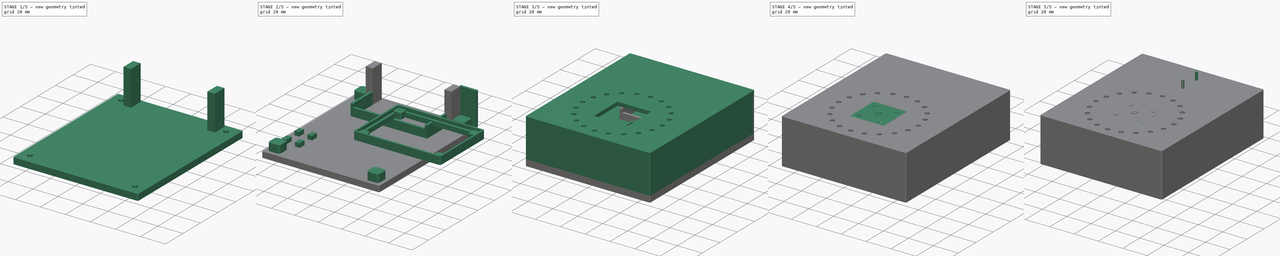
[diagram: build sequence overview — one tinted view per stage of 5, left to right]
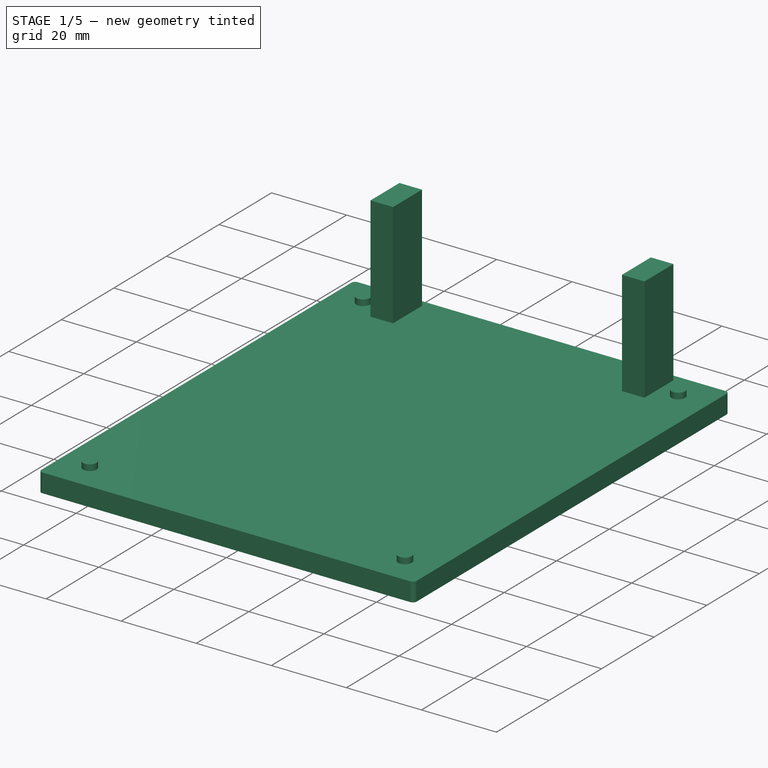
[diagram: stage 1 of 5 — iso view after this stage's code; geometry added in this stage tinted green]
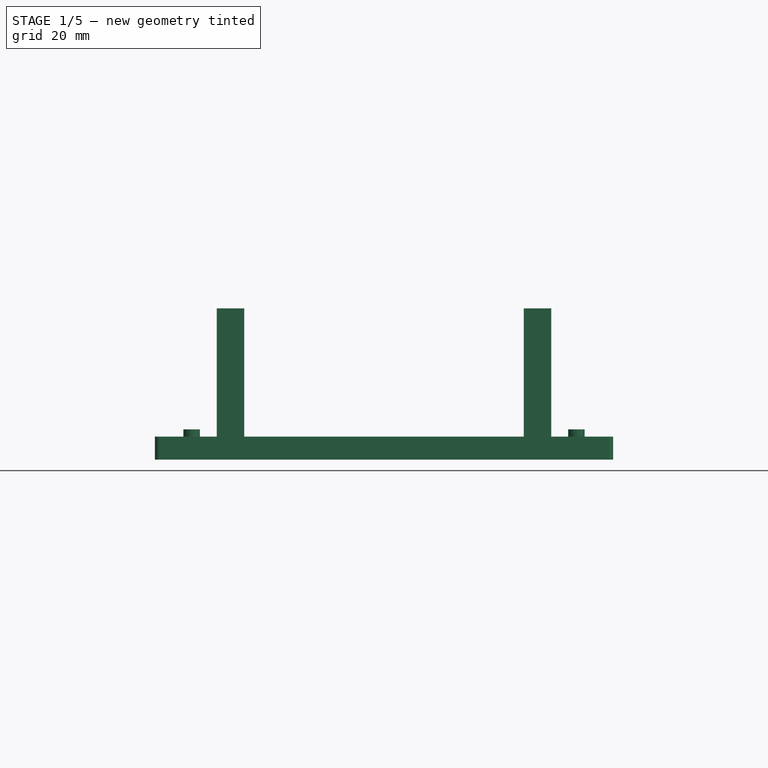
[diagram: stage 1 of 5 — front view after this stage's code; geometry added in this stage tinted green]
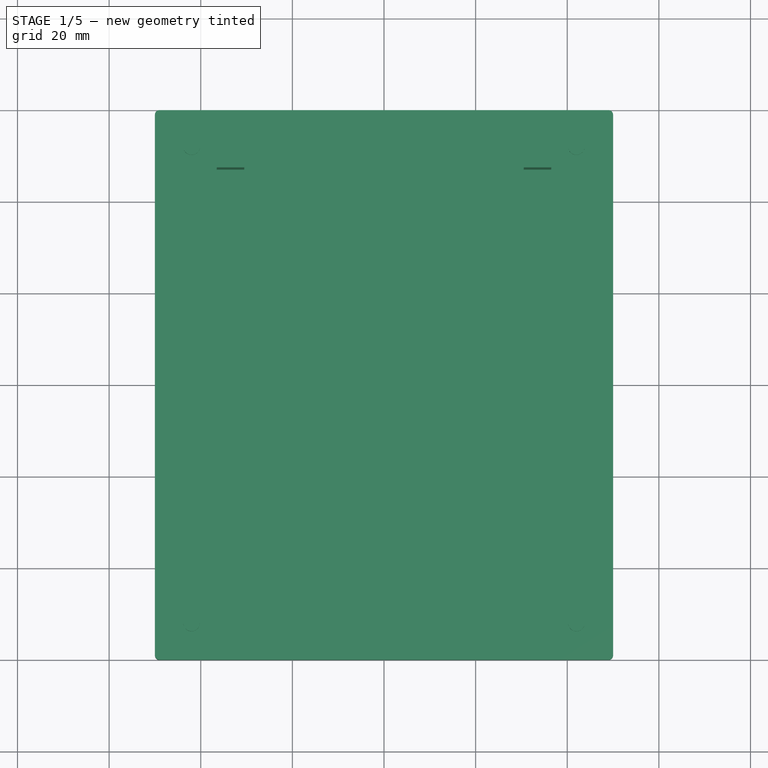
[diagram: stage 1 of 5 — top view after this stage's code; geometry added in this stage tinted green]
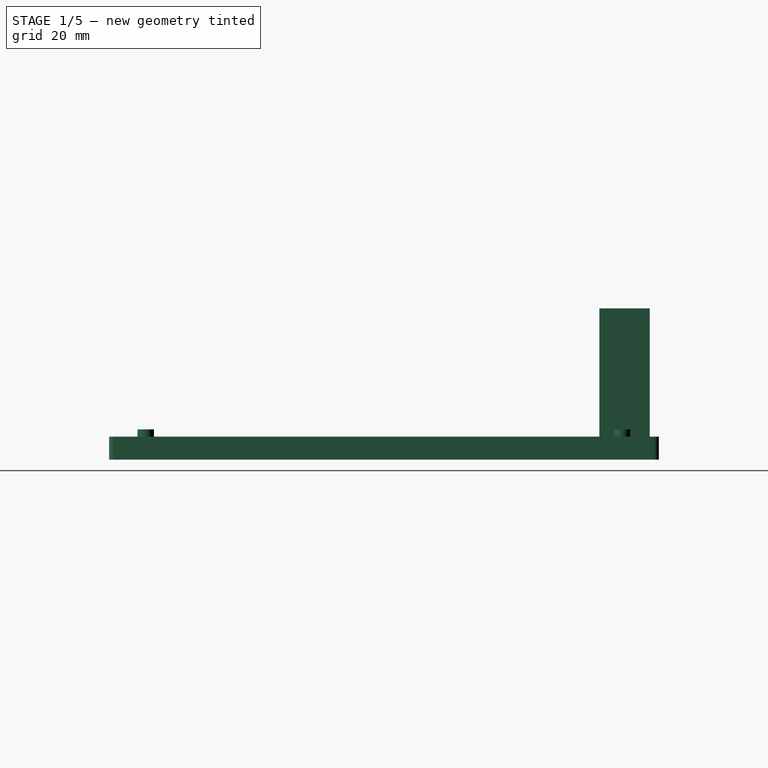
[diagram: stage 1 of 5 — right view after this stage's code; geometry added in this stage tinted green]
FCSTD DOCUMENT  (FreeCAD 0.19R)
Label: led_circle
License: All rights reserved
LicenseURL: http://en.wikipedia.org/wiki/All_rights_reserved
objects: Part::Box×36, Part::Cylinder×18, Part::FeaturePython×18, Part::Cut×15, Part::MultiFuse×14, Part::Fillet×10, App::Part×7, PartDesign::Body×5, Part::Feature×5, Sketcher::SketchObject×3, PartDesign::Pad×3, PartDesign::FeatureBase×2, Part::Mirroring×1, Spreadsheet::Sheet×1, Part::Cone×1
note: 120 computed .brp shape members not serialized (recipe doc carries the construction recipe); baked Part::Feature solids carry a one-line shape summary decoded from their .brp

FEATURE [Part::Box] Box001  label="top wall"
  AttacherType = Attacher::AttachEngine3D
  Height = 3
  Length = 100
  Placement = pos=(-50,-40,21) rot=(0,0,1;0rad)
  Width = 120
  expr: .Placement.Base.x = -Length / 2
FEATURE [Part::Box] Box005  label="bottom wall"
  AttacherType = Attacher::AttachEngine3D
  Height = 2
  Length = 100
  Placement = pos=(-50,-40,-7) rot=(0,0,1;0rad)
  Width = 120
  expr: Length = <<top wall>>.Length
  expr: Width = <<top wall>>.Width
  expr: .Placement.Base.x = <<top wall>>.Placement.Base.x
  expr: .Placement.Base.y = <<top wall>>.Placement.Base.y
  expr: .Placement.Base.z = -Height - 5mm
FEATURE [Part::Box] Box007  label="short battery side wall"
  AttacherType = Attacher::AttachEngine3D
  Height = 28
  Length = 14.5
  Placement = pos=(-50,78,-7) rot=(0,0,1;0rad)
  Width = 2
  expr: .Placement.Base.z = <<bottom wall>>.Placement.Base.z
  expr: .Placement.Base.x = <<top wall>>.Placement.Base.x
  expr: .Placement.Base.y = <<top wall>>.Placement.Base.y + <<top wall>>.Width - Width
  expr: Height = <<top wall>>.Placement.Base.z - .Placement.Base.z
FEATURE [PartDesign::Body] Body001  label="dd frame fusion with holes no attachment clone"
  BaseFeature = -> Cut002005
  Group = -> [Clone]
  Origin = -> Origin005
  Placement = pos=(35,-36,-7) rot=(0,0,1;1.5708rad)
  Tip = -> Clone
FEATURE [Part::Box] Box016  label="stand cube001"
  AttacherType = Attacher::AttachEngine3D
  Height = 6.6
  Length = 10
  Placement = pos=(-5,-5,0) rot=(0,0,1;0rad)
  Width = 10
  expr: .Placement.Base.y = -Width / 2
  expr: .Placement.Base.x = -Length / 2
FEATURE [Part::Box] Box029  label="battery hole stand"
  AttacherType = Attacher::AttachEngine3D
  Height = 28
  Length = 6
  Placement = pos=(-36.5,67,-7) rot=(0,0,1;0rad)
  Width = 11
  expr: .Placement.Base.z = <<bottom wall>>.Placement.Base.z
  expr: Height = <<top wall>>.Placement.Base.z - .Placement.Base.z
FEATURE [Part::Box] Box030  label="battery hole stand001"
  AttacherType = Attacher::AttachEngine3D
  Height = 28
  Length = 6
  Placement = pos=(30.5,67,-7) rot=(0,0,1;0rad)
  Width = 11
  expr: .Placement.Base.z = <<bottom wall>>.Placement.Base.z
  expr: Height = <<top wall>>.Placement.Base.z - .Placement.Base.z
FEATURE [App::Part] Part003  label="battery cover"
  Group = -> [Body003,Box031,Cut002003008,Array014,Cylinder017,Fusion005004008]
  Origin = -> Origin021
FEATURE [Part::Box] Box032  label="magnit wall"
  AttacherType = Attacher::AttachEngine3D
  Height = 1
  Length = 100
  Placement = pos=(-50,-40,-12) rot=(0,0,1;0rad)
  Width = 120
  expr: .Placement.Base.z = -Height - 11mm
  expr: .Placement.Base.y = <<top wall>>.Placement.Base.y
  expr: .Placement.Base.x = <<top wall>>.Placement.Base.x
  expr: Width = <<top wall>>.Width
  expr: Length = <<top wall>>.Length
FEATURE [Part::Box] Box033  label="magnit short side wall"
  AttacherType = Attacher::AttachEngine3D
  Height = 5
  Length = 100
  Placement = pos=(-50,-40,-12) rot=(0,0,1;0rad)
  Width = 2
  expr: .Placement.Base.x = <<top wall>>.Placement.Base.x
  expr: .Placement.Base.y = <<top wall>>.Placement.Base.y
  expr: Height = <<bottom wall>>.Placement.Base.z - .Placement.Base.z
  expr: Length = <<top wall>>.Length
  expr: .Placement.Base.z = <<magnit wall>>.Placement.Base.z
FEATURE [Part::Box] Box034  label="magnit short battery side wall"
  AttacherType = Attacher::AttachEngine3D
  Height = 5
  Length = 100
  Placement = pos=(-50,78,-12) rot=(0,0,1;0rad)
  Width = 2
  expr: .Placement.Base.z = <<magnit wall>>.Placement.Base.z
  expr: Length = <<top wall>>.Length
  expr: Height = <<bottom wall>>.Placement.Base.z - .Placement.Base.z
  expr: .Placement.Base.y = <<short battery side wall>>.Placement.Base.y
  expr: .Placement.Base.x = <<top wall>>.Placement.Base.x
FEATURE [Part::Box] Box035  label="magnit long side wall"
  AttacherType = Attacher::AttachEngine3D
  Height = 5
  Length = 2
  Placement = pos=(-50,-40,-12) rot=(0,0,1;0rad)
  Width = 120
  expr: Width = <<top wall>>.Width
  expr: Height = <<bottom wall>>.Placement.Base.z - .Placement.Base.z
  expr: .Placement.Base.y = <<top wall>>.Placement.Base.y
  expr: .Placement.Base.x = <<top wall>>.Placement.Base.x
  expr: .Placement.Base.z = <<magnit wall>>.Placement.Base.z
FEATURE [Part::Box] Box036  label="magnit other long side wall"
  AttacherType = Attacher::AttachEngine3D
  Height = 5
  Length = 2
  Placement = pos=(48,-40,-12) rot=(0,0,1;0rad)
  Width = 120
  expr: .Placement.Base.x = <<top wall>>.Placement.Base.x + <<top wall>>.Length - Length
  expr: .Placement.Base.y = <<top wall>>.Placement.Base.y
  expr: Height = <<bottom wall>>.Placement.Base.z - .Placement.Base.z
  expr: Width = <<top wall>>.Width
  expr: .Placement.Base.z = <<magnit wall>>.Placement.Base.z
FEATURE [Part::Box] Box037  label="stand cube002"
  AttacherType = Attacher::AttachEngine3D
  Height = 4.6
  Length = 10
  Placement = pos=(-5,-5,0) rot=(0,0,1;0rad)
  Width = 10
  expr: Height = <<bottom wall>>.Placement.Base.z - <<magnit wall>>.Placement.Base.z - 0.4mm
  expr: .Placement.Base.x = -Length / 2
  expr: .Placement.Base.y = -Width / 2
FEATURE [Part::Fillet] Fillet006  label="stand cube fillet002"
  Base = -> Box037
  Edges = 4 edges r=2: [Edge1,Edge3,Edge5,Edge7]
FEATURE [Part::FeaturePython] Array015  label="stand cube array003"  # Draft array (typed FeaturePython)
  Angle = 360
  ArrayType = 0
  Axis = (0,0,1)
  Base = -> Fillet006
  Center = (0,0,0)
  Count = 4
  ExpandArray = false
  Fuse = false
  IntervalAxis = (0,0,0)
  IntervalX = (84,0,0)
  IntervalY = (0,104,0)
  IntervalZ = (0,0,100)
  NumberCircles = 3
  NumberPolar = 5
  NumberX = 2
  NumberY = 2
  NumberZ = 1
  Placement = pos=(-42,-32,-12) rot=(0,0,1;0rad)
  PlacementList = 4 placements: [(0,0,0),(0,104,0),(84,0,0),(84,104,0)]
  RadialDistance = 50
  ScaleList = (4) [(1,1,1),(1,1,1),(1,1,1),(1,1,1)]
  Symmetry = 1
  TangentialDistance = 25
  expr: .IntervalX.x = <<top wall>>.Length - <<stand cube002>>.Length - 6mm
  expr: .Placement.Base.x = -.IntervalX.x / 2
  expr: .Placement.Base.y = <<top wall>>.Placement.Base.y + <<stand cube002>>.Width / 2 + 3mm
  expr: .IntervalY.y = <<top wall>>.Width - <<stand cube002>>.Width - 6mm
  expr: .Placement.Base.z = <<magnit wall>>.Placement.Base.z
FEATURE [Part::Cylinder] Cylinder018  label="stand cube hole003"
  Angle = 360
  AttacherType = Attacher::AttachEngine3D
  Height = 6.6
  Radius = 1.8
  expr: Height = <<stand cube001>>.Height
FEATURE [Part::FeaturePython] HoneycombSolid  # WARN: FeaturePython — macro-defined, semantics opaque (R4)
  Circumradius = 5
  Height = 3.6
  Length = 100
  Placement = pos=(-50,-40,-11) rot=(0,0,1;0rad)
  Tickness = 1
  Width = 120
  expr: Height = <<stand cube002>>.Height - <<magnit wall>>.Height
  expr: .Placement.Base.z = <<magnit wall>>.Placement.Base.z + <<magnit wall>>.Height
  expr: .Placement.Base.y = <<magnit wall>>.Placement.Base.y
  expr: .Placement.Base.x = <<magnit wall>>.Placement.Base.x
  expr: Width = <<magnit wall>>.Width
  expr: Length = <<magnit wall>>.Length
FEATURE [Part::MultiFuse] Fusion005004009  label="magnit wall fusion"
  Shapes = -> [Box033,Box034,Box035,Box036,Array015,HoneycombSolid,Box032]
FEATURE [Part::Box] Box040  label="magnit wall001"
  AttacherType = Attacher::AttachEngine3D
  Height = 5
  Length = 100
  Placement = pos=(-50,-40,-12) rot=(0,0,1;0rad)
  Width = 120
  expr: Height = <<bottom wall>>.Placement.Base.z - .Placement.Base.z
  expr: Length = <<top wall>>.Length
  expr: Width = <<top wall>>.Width
  expr: .Placement.Base.x = <<top wall>>.Placement.Base.x
  expr: .Placement.Base.y = <<top wall>>.Placement.Base.y
FEATURE [App::Part] Part004  label="bottom part"
  Group = -> [Cut002003005]
  Origin = -> Origin023
FEATURE [Part::Fillet] Fillet008  label="magnit wall001 fillet"
  Base = -> Box040
  Edges = 4 edges r=1: [Edge1,Edge3,Edge5,Edge7]
FEATURE [Part::Fillet] Fillet009  label="magnit wall fusion fillet"
  Base = -> Fusion005004009
  Edges = 4 edges r=1: [Edge8,Edge162,Edge205,Edge3323]
FEATURE [Part::Cone] Cone
  Angle = 360
  AttacherType = Attacher::AttachEngine3D
  Height = 1.5
  Radius1 = 2.6
  Radius2 = 1.8
FEATURE [Part::MultiFuse] Fusion005004012  label="stand cube hole003 fusion"
  Shapes = -> [Cylinder018,Cone]
FEATURE [Part::FeaturePython] Array016  label="magnet stand cube hole array"  # Draft array (typed FeaturePython)
  Angle = 360
  ArrayType = 0
  Axis = (0,0,1)
  Base = -> Fusion005004012
  Center = (0,0,0)
  Count = 4
  ExpandArray = false
  Fuse = false
  IntervalAxis = (0,0,0)
  IntervalX = (84,0,0)
  IntervalY = (0,104,0)
  IntervalZ = (0,0,100)
  NumberCircles = 3
  NumberPolar = 5
  NumberX = 2
  NumberY = 2
  NumberZ = 1
  Placement = pos=(-42,-32,-12) rot=(0,0,1;0rad)
  PlacementList = 4 placements: [(0,0,0),(0,104,0),(84,0,0),(84,104,0)]
  RadialDistance = 50
  ScaleList = (4) [(1,1,1),(1,1,1),(1,1,1),(1,1,1)]
  Symmetry = 1
  TangentialDistance = 25
  expr: .Placement.Base.z = <<magnit wall>>.Placement.Base.z
  expr: .IntervalY.y = <<top wall>>.Width - <<stand cube001>>.Width - 6mm
  expr: .Placement.Base.y = <<top wall>>.Placement.Base.y + <<stand cube001>>.Width / 2 + 3mm
  expr: .Placement.Base.x = -.IntervalX.x / 2
  expr: .IntervalX.x = <<top wall>>.Length - <<stand cube001>>.Length - 6mm
FEATURE [App::Part] Part005  label="magnit wall part"
  Group = -> [Cut002003009]
  Origin = -> Origin024
FEATURE [PartDesign::FeatureBase] Clone001
  BaseFeature = -> Array016
  Placement = pos=(-42,-32,-12) rot=(0,0,1;0rad)
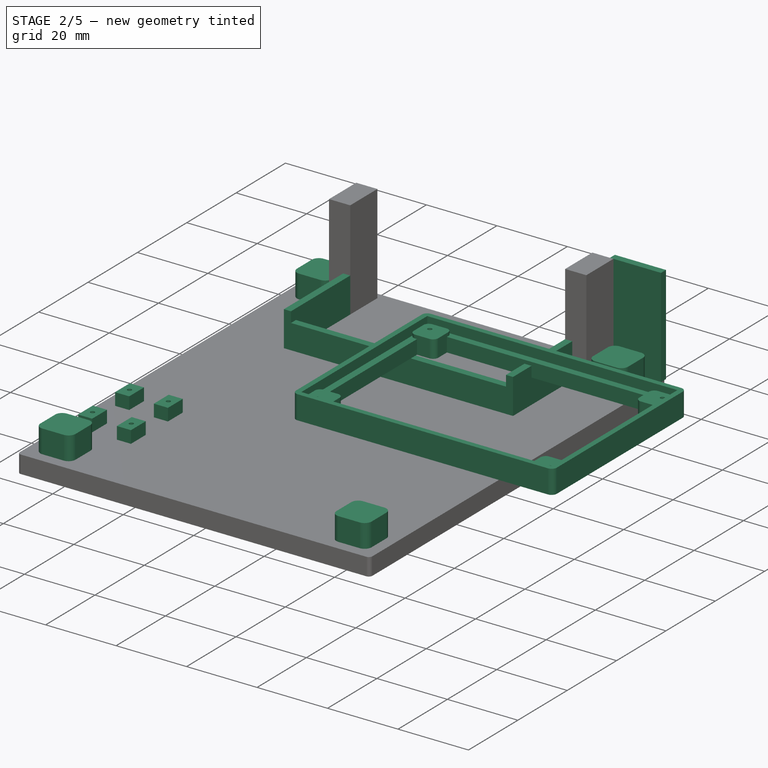
[diagram: stage 2 of 5 — iso view after this stage's code; geometry added in this stage tinted green]
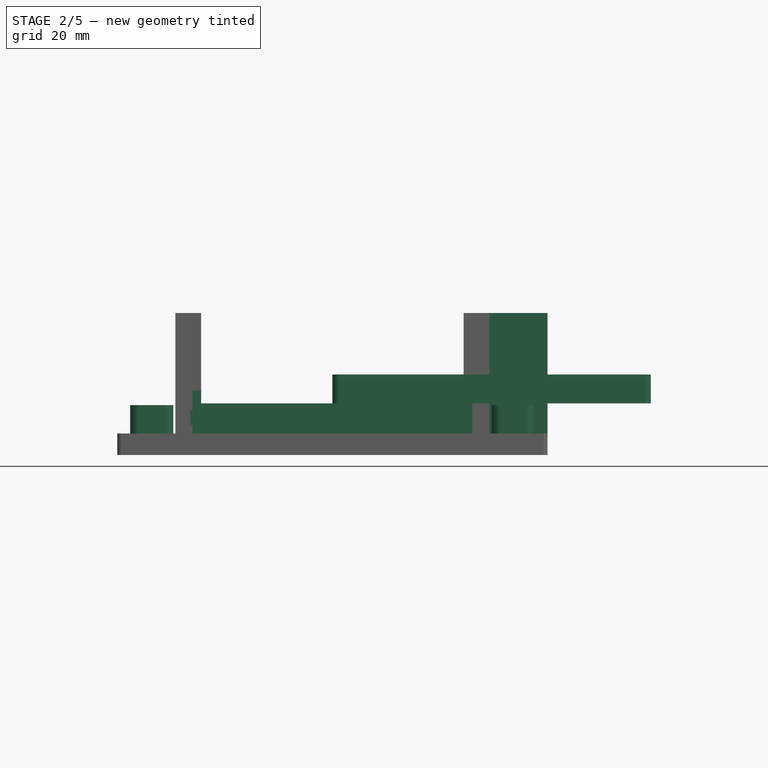
[diagram: stage 2 of 5 — front view after this stage's code; geometry added in this stage tinted green]
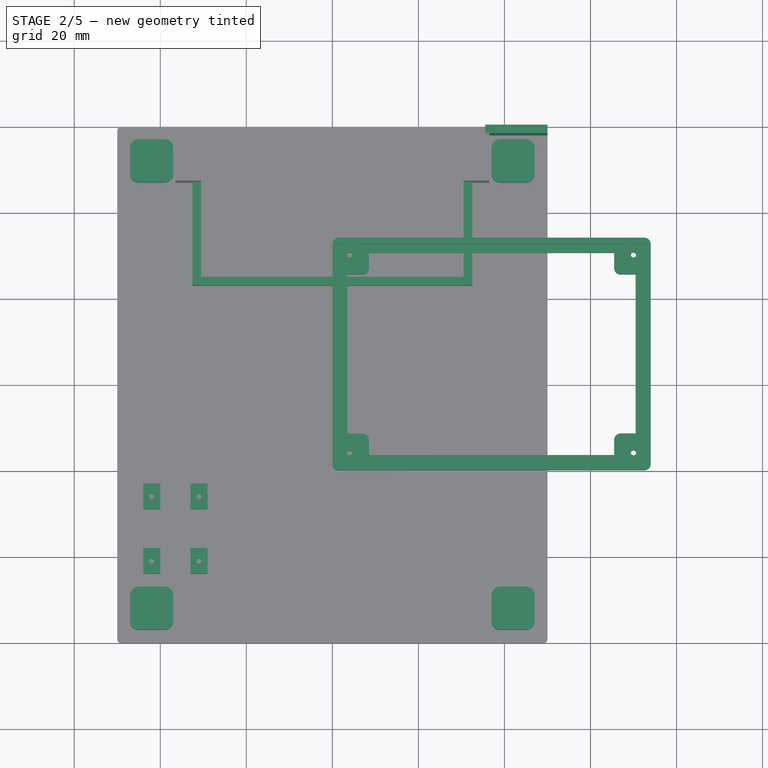
[diagram: stage 2 of 5 — top view after this stage's code; geometry added in this stage tinted green]
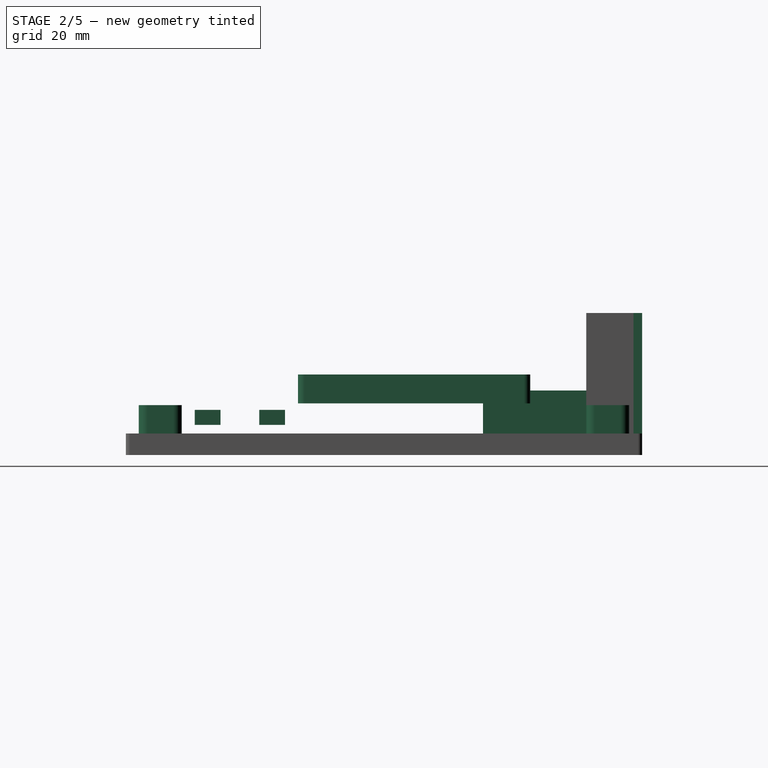
[diagram: stage 2 of 5 — right view after this stage's code; geometry added in this stage tinted green]
FEATURE [Part::Cylinder] Cylinder011  label="dd pcb hole"
  Angle = 360
  AttacherType = Attacher::AttachEngine3D
  Height = 10
  Placement = pos=(4,4,0) rot=(0,0,1;0rad)
  Radius = 0.6
  expr: Radius = <<p>>.hole_r
  expr: .Placement.Base.x = (<<p>>.box_wall * 2 + <<p>>.pcb_x - <<p>>.dd_hole_x_dist) / 2
  expr: .Placement.Base.y = (<<p>>.box_wall * 2 + <<p>>.pcb_y - <<p>>.dd_hole_y_dist) / 2
FEATURE [Part::Box] Box011  label="pcb extraction001"
  AttacherType = Attacher::AttachEngine3D
  Height = 10
  Length = 71
  Placement = pos=(1.5,1.5,4) rot=(0,0,1;0rad)
  Width = 51
  expr: Width = <<p>>.pcb_y
  expr: Length = <<p>>.pcb_x
  expr: .Placement.Base.x = <<p>>.box_wall
  expr: .Placement.Base.y = <<p>>.box_wall
  expr: .Placement.Base.z = <<p>>.under_pcb_border + <<p>>.under_layer
FEATURE [Part::Box] Box012  label="hole stand cube001"
  AttacherType = Attacher::AttachEngine3D
  Height = 5
  Length = 7
  Placement = pos=(1.5,1.5,0) rot=(0,0,1;0rad)
  Width = 7
  expr: Length = <<p>>.hole_stand_x
  expr: Width = <<p>>.hole_stand_y
  expr: Height = <<p>>.pcb_under + <<p>>.under_layer
  expr: .Placement.Base.x = <<p>>.box_wall
  expr: .Placement.Base.y = <<p>>.box_wall
FEATURE [Part::Fillet] Fillet003  label="stand fillet001"
  Base = -> Box012
  Edges = 4 edges r=1.5: [Edge1,Edge3,Edge5,Edge7]
FEATURE [Part::FeaturePython] Array007  label="hole stand array001"  # Draft array (typed FeaturePython)
  Angle = 360
  ArrayType = 0
  Axis = (0,0,1)
  Base = -> Fillet003
  Center = (0,0,0)
  Fuse = false
  IntervalAxis = (0,0,0)
  IntervalX = (64,0,0)
  IntervalY = (0,44,0)
  IntervalZ = (0,0,1)
  NumberPolar = 1
  NumberX = 2
  NumberY = 2
  NumberZ = 1
  expr: .IntervalX.x = <<p>>.pcb_x - <<p>>.hole_stand_x
  expr: .IntervalY.y = <<p>>.pcb_y - <<p>>.hole_stand_y
FEATURE [Spreadsheet::Sheet] Spreadsheet  label="p"
  cells = A1=hole_x_dist; B1(hole_x_dist)=64; A2=hole_y_dist; B2(hole_y_dist)=44; A3=dd_hole_x_dist; B3(dd_hole_x_dist)=66; A4=dd_hole_y_dist; B4(dd_hole_y_dist)=46; A5=pcb_under; B5(pcb_under)=3; A6=pcb_x; B6(pcb_x)=71; A7=pcb_y; B7(pcb_y)=51; A8=hole_stand_x; B8(hole_stand_x)=7; A9=hole_stand_y; B9(hole_stand_y)=7; A10=hole_r; B10(hole_r)=0.6; A11=box_wall; B11(box_wall)=1.5; A12=under_layer; B12(under_layer)=2; A13=pcb_height; B13(pcb_height)=1.7; A14=under_pcb_border; B14(under_pcb_border)=2
FEATURE [Part::Box] Box013  label="bottom extraction002"
  AttacherType = Attacher::AttachEngine3D
  Height = 10
  Length = 67
  Placement = pos=(3.5,3.5,0) rot=(0,0,1;0rad)
  Width = 47
  expr: Width = <<p>>.pcb_y - <<p>>.under_pcb_border * 2
  expr: Length = <<p>>.pcb_x - <<p>>.under_pcb_border * 2
  expr: .Placement.Base.x = <<p>>.under_pcb_border + <<p>>.box_wall
  expr: .Placement.Base.y = <<p>>.under_pcb_border + <<p>>.box_wall
FEATURE [Part::MultiFuse] Fusion005  label="bottom extraction003"
  Shapes = -> [Box013,Box011]
FEATURE [Part::FeaturePython] Array008  label="dd hole array"  # Draft array (typed FeaturePython)
  Angle = 360
  ArrayType = 0
  Axis = (0,0,1)
  Base = -> Cylinder011
  Center = (0,0,0)
  Fuse = false
  IntervalAxis = (0,0,0)
  IntervalX = (66,0,0)
  IntervalY = (0,46,0)
  IntervalZ = (0,0,1)
  NumberPolar = 1
  NumberX = 2
  NumberY = 2
  NumberZ = 1
  expr: .IntervalX.x = <<p>>.dd_hole_x_dist
  expr: .IntervalY.y = <<p>>.dd_hole_y_dist
FEATURE [Part::Box] Box014  label="bottom cube001"
  AttacherType = Attacher::AttachEngine3D
  Height = 6.7
  Length = 74
  Width = 54
  expr: Height = <<p>>.pcb_under + <<p>>.pcb_height + <<p>>.under_layer
  expr: Length = <<p>>.pcb_x + <<p>>.box_wall * 2
  expr: Width = <<p>>.pcb_y + <<p>>.box_wall * 2
FEATURE [Part::Fillet] Fillet004  label="bottom cube fillet001"
  Base = -> Box014
  Edges = 4 edges r=1.5: [Edge1,Edge3,Edge5,Edge7]
FEATURE [Part::Cut] Cut002004  label="pcb box cut001"
  Base = -> Fillet004
  Tool = -> Fusion005
FEATURE [Part::MultiFuse] Fusion003  label="frame fusion001"
  Shapes = -> [Array007,Cut002004]
FEATURE [Part::Cut] Cut002005  label="dd frame fusion with holes no attachment"
  Base = -> Fusion003
  Tool = -> Array008
FEATURE [Part::Fillet] Fillet005  label="stand cube fillet001"
  Base = -> Box016
  Edges = 4 edges r=2: [Edge1,Edge3,Edge5,Edge7]
FEATURE [Part::FeaturePython] Array010  label="stand cube array001"  # Draft array (typed FeaturePython)
  Angle = 360
  ArrayType = 0
  Axis = (0,0,1)
  Base = -> Fillet005
  Center = (0,0,0)
  Count = 4
  ExpandArray = false
  Fuse = false
  IntervalAxis = (0,0,0)
  IntervalX = (84,0,0)
  IntervalY = (0,104,0)
  IntervalZ = (0,0,100)
  NumberCircles = 3
  NumberPolar = 5
  NumberX = 2
  NumberY = 2
  NumberZ = 1
  Placement = pos=(-42,-32,-7) rot=(0,0,1;0rad)
  PlacementList = 4 placements: [(0,0,0),(0,104,0),(84,0,0),(84,104,0)]
  RadialDistance = 50
  ScaleList = (4) [(1,1,1),(1,1,1),(1,1,1),(1,1,1)]
  Symmetry = 1
  TangentialDistance = 25
  expr: .Placement.Base.z = <<bottom wall>>.Placement.Base.z
  expr: .IntervalY.y = <<top wall>>.Width - <<stand cube001>>.Width - 6mm
  expr: .Placement.Base.y = <<top wall>>.Placement.Base.y + <<stand cube001>>.Width / 2 + 3mm
  expr: .Placement.Base.x = -.IntervalX.x / 2
  expr: .IntervalX.x = <<top wall>>.Length - <<stand cube001>>.Length - 6mm
FEATURE [Part::Cylinder] Cylinder015  label="hole"
  Angle = 360
  AttacherType = Attacher::AttachEngine3D
  Height = 10
  Radius = 0.6
  expr: Radius = <<p>>.hole_r
FEATURE [Part::Box] Box024  label="stand001"
  AttacherType = Attacher::AttachEngine3D
  Height = 3.5
  Length = 6
  Placement = pos=(-3,-2,0) rot=(0,0,1;0rad)
  Width = 4
  expr: .Placement.Base.x = -Length / 2
  expr: .Placement.Base.y = -Width / 2
FEATURE [Part::Cut] Cut002003007  label="stand hole cut"
  Base = -> Box024
  Tool = -> Cylinder015
FEATURE [Part::FeaturePython] Array012  label="hole array"  # Draft array (typed FeaturePython)
  Angle = 360
  ArrayType = 0
  Axis = (0,0,1)
  Base = -> Cut002003007
  Center = (0,0,0)
  Count = 4
  ExpandArray = false
  Fuse = false
  IntervalAxis = (0,0,0)
  IntervalX = (15,0,0)
  IntervalY = (0,11,0)
  IntervalZ = (0,0,100)
  NumberCircles = 3
  NumberPolar = 5
  NumberX = 2
  NumberY = 2
  NumberZ = 1
  Placement = pos=(-31,-21,-5) rot=(0,0,1;1.5708rad)
  PlacementList = 4 placements: [(0,0,0),(0,11,0),(15,0,0),(15,11,0)]
  RadialDistance = 50
  ScaleList = (4) [(1,1,1),(1,1,1),(1,1,1),(1,1,1)]
  Symmetry = 1
  TangentialDistance = 25
FEATURE [Part::Feature] Fusion002001  label="buzzer fusion001"
  Placement = pos=(-25,-17,-8) rot=(0,0,1;1.5708rad)
  shape: bbox 17.5 x 40 x 6.6 mm, 66 faces (baked)
FEATURE [Part::Box] Box025  label="battery long wall"
  AttacherType = Attacher::AttachEngine3D
  Height = 7
  Length = 65
  Placement = pos=(-32.5,43,-7) rot=(0,0,1;0rad)
  Width = 2
  expr: .Placement.Base.z = <<bottom wall>>.Placement.Base.z
FEATURE [Part::Box] Box026  label="battery short wall"
  AttacherType = Attacher::AttachEngine3D
  Height = 10
  Length = 2
  Placement = pos=(30.5,43,-7) rot=(0,0,1;0rad)
  Width = 24
  expr: .Placement.Base.z = <<bottom wall>>.Placement.Base.z
FEATURE [Part::Box] Box027  label="battery switch side short wall"
  AttacherType = Attacher::AttachEngine3D
  Height = 10
  Length = 2
  Placement = pos=(-32.5,43,-7) rot=(0,0,1;0rad)
  Width = 24
  expr: .Placement.Base.z = <<bottom wall>>.Placement.Base.z
FEATURE [Part::Box] Box028  label="short battery side wall001"
  AttacherType = Attacher::AttachEngine3D
  Height = 28
  Length = 14.5
  Placement = pos=(35.5,78,-7) rot=(0,0,1;0rad)
  Width = 2
  expr: Height = <<top wall>>.Placement.Base.z - .Placement.Base.z
  expr: .Placement.Base.y = <<top wall>>.Placement.Base.y + <<top wall>>.Width - Width
  expr: .Placement.Base.z = <<bottom wall>>.Placement.Base.z
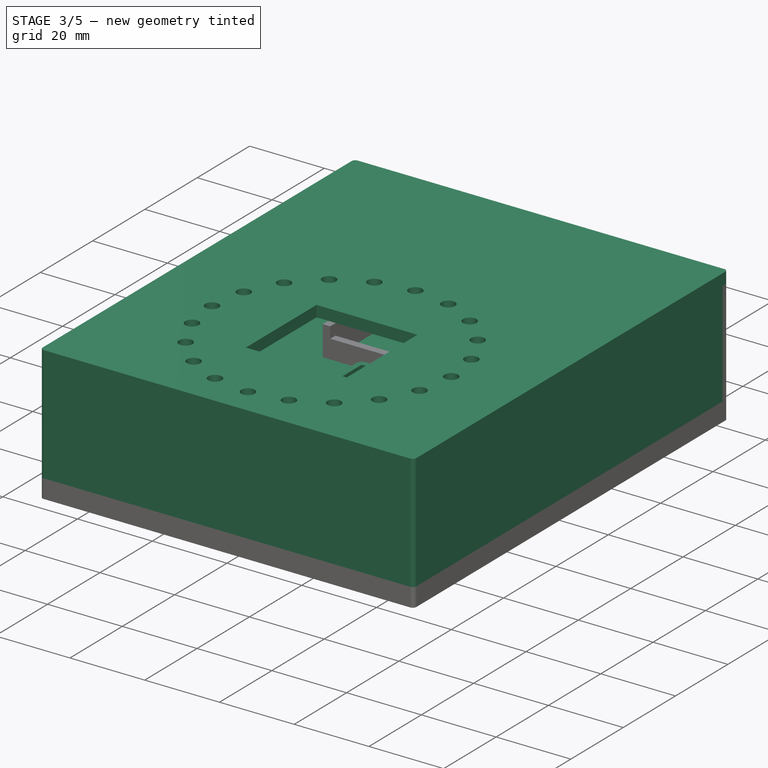
[diagram: stage 3 of 5 — iso view after this stage's code; geometry added in this stage tinted green]
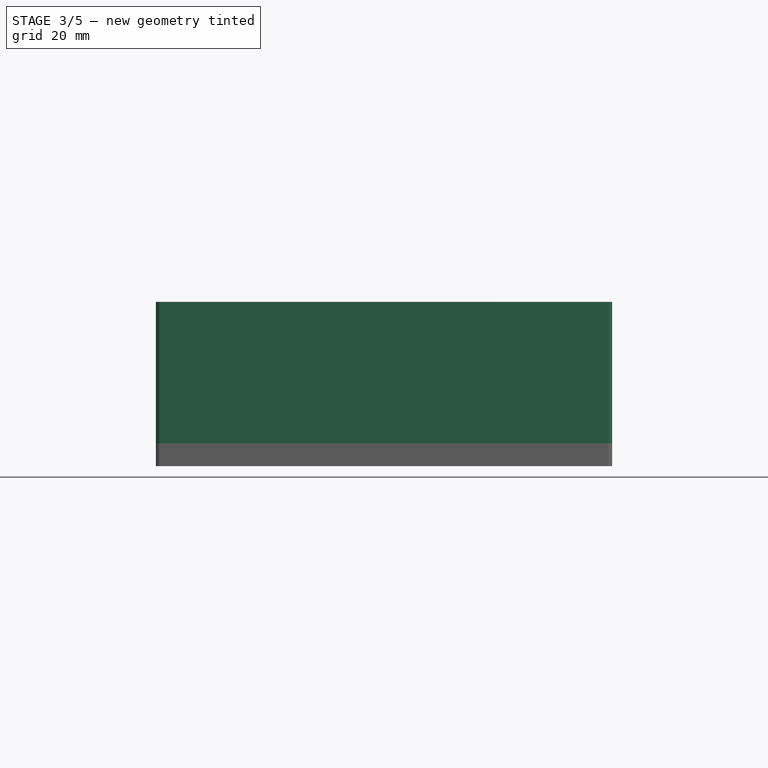
[diagram: stage 3 of 5 — front view after this stage's code; geometry added in this stage tinted green]
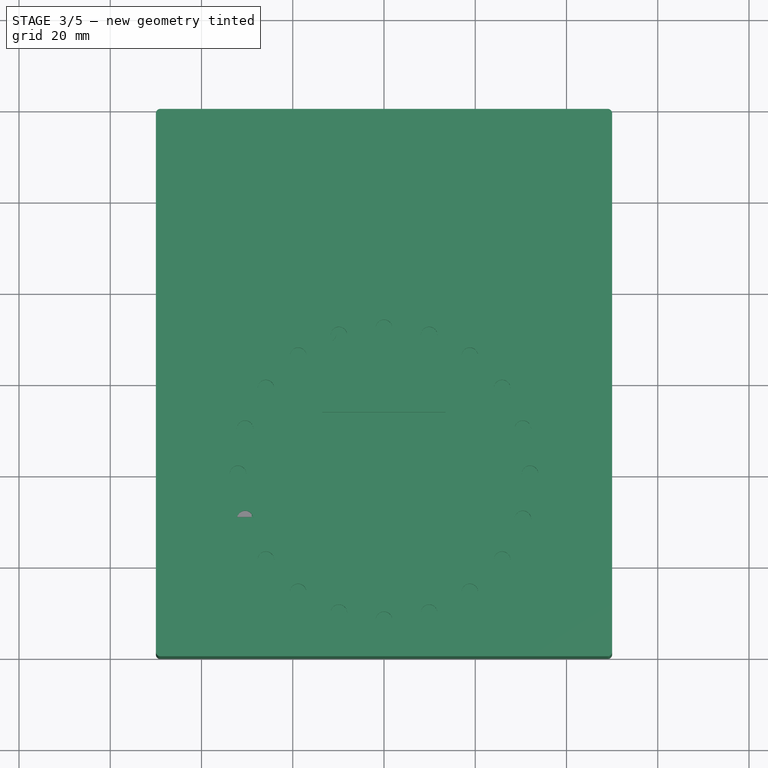
[diagram: stage 3 of 5 — top view after this stage's code; geometry added in this stage tinted green]
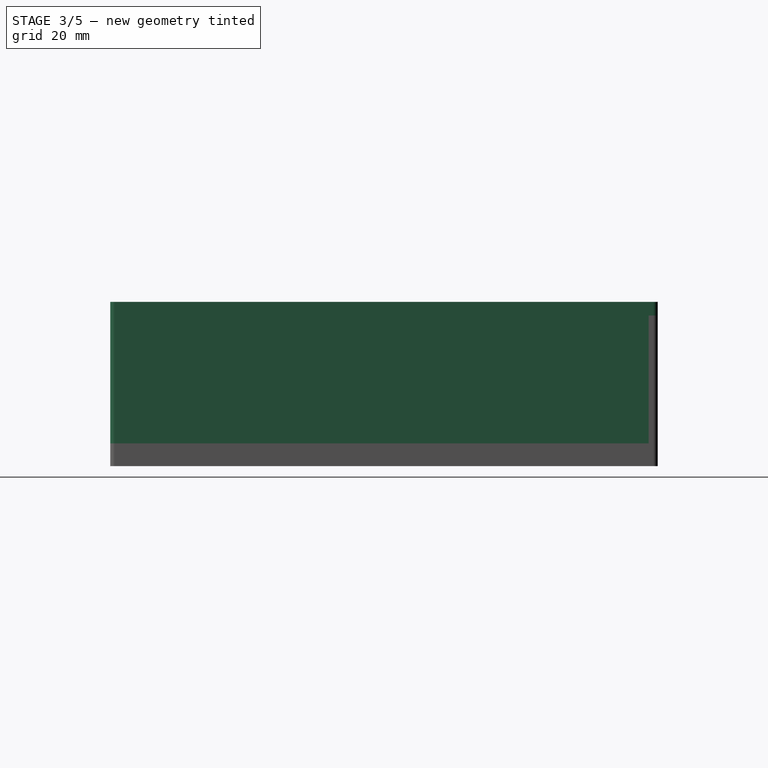
[diagram: stage 3 of 5 — right view after this stage's code; geometry added in this stage tinted green]
FEATURE [Sketcher::SketchObject] Sketch
  FullyConstrained = true
  MapMode = 5
  Support = -> [XY_Plane001]
  sketch-geometry (5):
    g0: LineSegment StartX=-0.5 StartY=1.5 StartZ=0 EndX=-0.5 EndY=-1.5 EndZ=0
    g1: LineSegment StartX=0.5 StartY=1.5 StartZ=0 EndX=0.5 EndY=-1.5 EndZ=0
    g2: ArcOfCircle CenterX=1e-16 CenterY=-1e-16 CenterZ=0 NormalX=0 NormalY=0 NormalZ=1 AngleXU=0 Radius=1.58114 StartAngle=1.89255 EndAngle=4.39064
    g3: Circle CenterX=0 CenterY=0 CenterZ=0 NormalX=0 NormalY=0 NormalZ=1 AngleXU=0 Radius=2.5
    g4: ArcOfCircle CenterX=1e-16 CenterY=-1e-16 CenterZ=0 NormalX=0 NormalY=0 NormalZ=1 AngleXU=0 Radius=1.58114 StartAngle=5.03414 EndAngle=7.53223
  constraints (13):
    c: Vertical(g1)
    c: DistanceY(g0,g0) = 3
    c: Symmetric(g0,g0,g-1)
    c: Symmetric(g1,g0,g-2)
    c: Coincident(g2,g0)
    c: Coincident(g2,g0)
    c: Radius(g3) = 2.5
    c: Coincident(g4,g1)
    c: Coincident(g4,g1)
    c: Coincident(g3,g-1)
    c: Coincident(g4,g2)
    c: DistanceX(g0,g1) = 1
    c: Equal(g2,g4)
FEATURE [PartDesign::Pad] Pad
  Direction = (1,1,1)
  Length = 10
  Length2 = 100
  Profile = -> Sketch
  Type = 0
FEATURE [Part::Cylinder] Cylinder002
  Angle = 360
  AttacherType = Attacher::AttachEngine3D
  Height = 10
  Radius = 2
FEATURE [Part::Cut] Cut001  label="led place cut"
  Base = -> Cylinder002
  Placement = pos=(32,0,0) rot=(0,0,1;0rad)
  Tool = -> Body
FEATURE [Part::Box] Box002  label="button cut"
  AttacherType = Attacher::AttachEngine3D
  Height = 10
  Length = 27
  Placement = pos=(-13.5,-13.5,17) rot=(0,0,1;0rad)
  Width = 27
  expr: .Placement.Base.x = -Length / 2
  expr: .Placement.Base.y = -Width / 2
FEATURE [Part::Cylinder] Cylinder005  label="led hole"
  Angle = 360
  AttacherType = Attacher::AttachEngine3D
  Height = 10
  Placement = pos=(32,0,0) rot=(0,0,1;0rad)
  Radius = 1.8
  expr: .Placement.Base.x = <<led place cut>>.Placement.Base.x
FEATURE [Part::FeaturePython] Array003  label="led holder array001"  # Draft array (typed FeaturePython)
  Angle = 360
  ArrayType = 1
  Axis = (0,0,1)
  Base = -> Cylinder005
  Center = (0,0,0)
  Count = 20
  ExpandArray = false
  Fuse = false
  IntervalAxis = (0,0,0)
  IntervalX = (50,0,0)
  IntervalY = (0,50,0)
  IntervalZ = (0,0,50)
  NumberCircles = 3
  NumberPolar = 20
  NumberX = 2
  NumberY = 2
  NumberZ = 1
  Placement = pos=(0,0,17) rot=(0,0,1;0rad)
  PlacementList = 20 placements: [(32,0,0),(30.4338,9.88854,0),(25.8885,18.8091,0),(18.8091,25.8885,0),(9.88854,30.4338,0),(7.10543e-15,32,0),(-9.88854,30.4338,0),(-18.8091,25.8885,0),(-25.8885,18.8091,0),(-30.4338,9.88854,0),(-32,3.91887e-15,0),(-30.4338,-9.88854,0),(-25.8885,-18.8091,0),(-18.8091,-25.8885,0),(-9.88854,-30.4338,0),(-7.10543e-15,-32,0),(9.88854,-30.4338,0),(18.8091,-25.8885,0),(25.8885,-18.8091,0),+1 more]
  RadialDistance = 50
  ScaleList = (20) [(1,1,1),(1,1,1),(1,1,1),(1,1,1),(1,1,1),(1,1,1),(1,1,1),(1,1,1),(1,1,1),(1,1,1),(1,1,1),(1,1,1),(1,1,1),(1,1,1),(1,1,1),(1,1,1),(1,1,1),(1,1,1),(1,1,1),(1,1,1)]
  Symmetry = 1
  TangentialDistance = 25
FEATURE [Part::MultiFuse] Fusion005004003
  Shapes = -> [Box002,Array003]
FEATURE [Part::Feature] Fusion005005  label="top cover plate fusion003"
  Placement = pos=(-12,-12,23) rot=(0,0,1;0rad)
  shape: bbox 27 x 27 x 6.5 mm, 29 faces (baked)
FEATURE [Part::Cylinder] Cylinder006  label="stand hole"
  Angle = 360
  AttacherType = Attacher::AttachEngine3D
  Height = 6
  Radius = 1.5
FEATURE [Part::Cylinder] Cylinder007  label="stand"
  Angle = 360
  AttacherType = Attacher::AttachEngine3D
  Height = 6
  Radius = 4
FEATURE [Part::Cut] Cut002003002  label="stand with hole"
  Base = -> Cylinder007
  Tool = -> Cylinder006
FEATURE [Part::FeaturePython] Array004  label="circle stand array"  # Draft array (typed FeaturePython)
  Angle = 360
  ArrayType = 0
  Axis = (0,0,1)
  Base = -> Cut002003002
  Center = (0,0,0)
  Count = 2
  ExpandArray = false
  Fuse = false
  IntervalAxis = (0,0,0)
  IntervalX = (80,0,0)
  IntervalY = (0,100,0)
  IntervalZ = (0,0,100)
  NumberCircles = 3
  NumberPolar = 5
  NumberX = 2
  NumberY = 1
  NumberZ = 1
  Placement = pos=(-40,0,15) rot=(0,0,1;0rad)
  PlacementList = 2 placements: [(0,0,0),(80,0,0)]
  RadialDistance = 50
  ScaleList = (2) [(1,1,1),(1,1,1)]
  Symmetry = 1
  TangentialDistance = 25
  expr: .Placement.Base.x = -.IntervalX.x / 2
  expr: .Placement.Base.z = <<top wall>>.Placement.Base.z - <<stand>>.Height
FEATURE [Part::Box] Box004  label="stand cube"
  AttacherType = Attacher::AttachEngine3D
  Height = 21
  Length = 10
  Placement = pos=(-5,-5,0) rot=(0,0,1;0rad)
  Width = 10
  expr: .Placement.Base.x = -Length / 2
  expr: .Placement.Base.y = -Width / 2
  expr: Height = <<top wall>>.Placement.Base.z
FEATURE [Part::Cylinder] Cylinder008  label="stand cube hole"
  Angle = 360
  AttacherType = Attacher::AttachEngine3D
  Height = 21
  Radius = 1.5
  expr: Height = <<stand cube>>.Height
FEATURE [Part::Fillet] Fillet  label="stand cube fillet"
  Base = -> Box004
  Edges = 4 edges r=2: [Edge1,Edge3,Edge5,Edge7]
FEATURE [Part::Cut] Cut002003003  label="stand cube cut"
  Base = -> Fillet
  Tool = -> Cylinder008
FEATURE [Part::FeaturePython] Array005  label="stand cube array"  # Draft array (typed FeaturePython)
  Angle = 360
  ArrayType = 0
  Axis = (0,0,1)
  Base = -> Cut002003003
  Center = (0,0,0)
  Count = 4
  ExpandArray = false
  Fuse = false
  IntervalAxis = (0,0,0)
  IntervalX = (84,0,0)
  IntervalY = (0,104,0)
  IntervalZ = (0,0,100)
  NumberCircles = 3
  NumberPolar = 5
  NumberX = 2
  NumberY = 2
  NumberZ = 1
  Placement = pos=(-42,-32,0) rot=(0,0,1;0rad)
  PlacementList = 4 placements: [(0,0,0),(0,104,0),(84,0,0),(84,104,0)]
  RadialDistance = 50
  ScaleList = (4) [(1,1,1),(1,1,1),(1,1,1),(1,1,1)]
  Symmetry = 1
  TangentialDistance = 25
  expr: .IntervalX.x = <<top wall>>.Length - <<stand cube>>.Length - 6mm
  expr: .Placement.Base.x = -.IntervalX.x / 2
  expr: .Placement.Base.y = <<top wall>>.Placement.Base.y + <<stand cube>>.Width / 2 + 3mm
  expr: .IntervalY.y = <<top wall>>.Width - <<stand cube>>.Width - 6mm
FEATURE [Part::Box] Box006  label="short side wall"
  AttacherType = Attacher::AttachEngine3D
  Height = 28
  Length = 100
  Placement = pos=(-50,-40,-7) rot=(0,0,1;0rad)
  Width = 2
  expr: .Placement.Base.z = <<bottom wall>>.Placement.Base.z
  expr: Length = <<top wall>>.Length
  expr: Height = <<top wall>>.Placement.Base.z - .Placement.Base.z
  expr: .Placement.Base.y = <<top wall>>.Placement.Base.y
  expr: .Placement.Base.x = <<top wall>>.Placement.Base.x
FEATURE [Part::Box] Box008  label="long side wall"
  AttacherType = Attacher::AttachEngine3D
  Height = 28
  Length = 2
  Placement = pos=(-50,-40,-7) rot=(0,0,1;0rad)
  Width = 120
  expr: .Placement.Base.z = <<bottom wall>>.Placement.Base.z
  expr: .Placement.Base.x = <<top wall>>.Placement.Base.x
  expr: .Placement.Base.y = <<top wall>>.Placement.Base.y
  expr: Height = <<top wall>>.Placement.Base.z - .Placement.Base.z
  expr: Width = <<top wall>>.Width
FEATURE [Part::Box] Box009  label="other long side wall"
  AttacherType = Attacher::AttachEngine3D
  Height = 28
  Length = 2
  Placement = pos=(48,-40,-7) rot=(0,0,1;0rad)
  Width = 120
  expr: .Placement.Base.z = <<bottom wall>>.Placement.Base.z
  expr: Width = <<top wall>>.Width
  expr: Height = <<top wall>>.Placement.Base.z - .Placement.Base.z
  expr: .Placement.Base.y = <<top wall>>.Placement.Base.y
  expr: .Placement.Base.x = <<top wall>>.Placement.Base.x + <<top wall>>.Length - Length
FEATURE [Part::Fillet] Fillet001  label="top wall fillet"
  Base = -> Box001
  Edges = 4 edges r=1: [Edge1,Edge3,Edge5,Edge7]
FEATURE [Part::Cut] Cut003002  label="top wall cut"
  Base = -> Fillet001
  Tool = -> Fusion005004003
FEATURE [PartDesign::FeatureBase] Clone
  BaseFeature = -> Cut002005
FEATURE [Part::MultiFuse] Fusion005004005  label="bottom fusion"
  Shapes = -> [Box006,Box007,Box008,Box009,Body001,Array010,Array012,Box028,Box025,Box026,Box027,Box029,Box030,Box005]
FEATURE [App::Part] Part007  label="top wall part"
  Group = -> [Fusion005004004]
  Origin = -> Origin026
FEATURE [Part::Fillet] Fillet007  label="bottom fusion fillet"
  Base = -> Fusion005004005
  Edges = 4 edges r=1: [Edge8,Edge42,Edge105,Edge474]
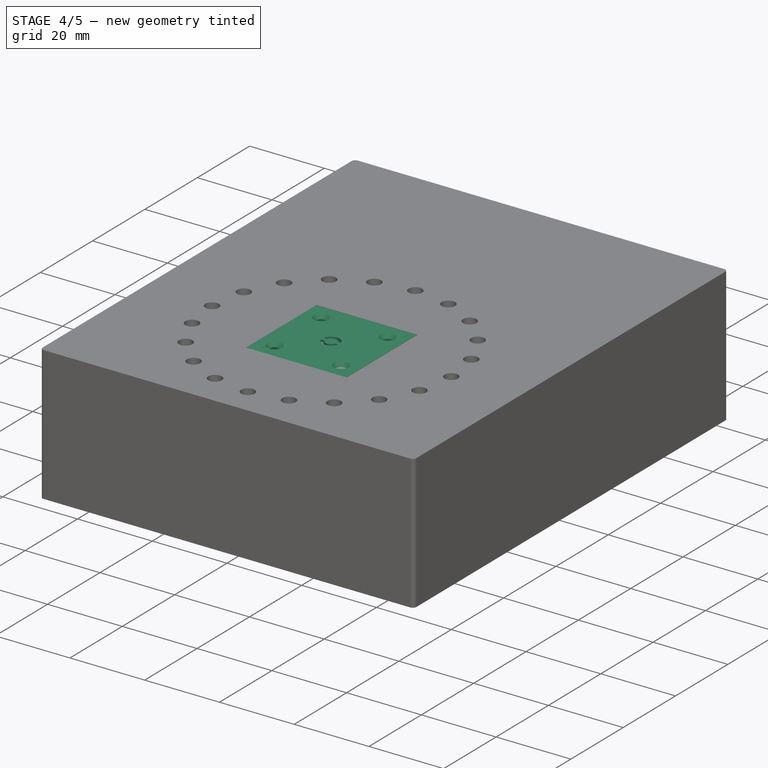
[diagram: stage 4 of 5 — iso view after this stage's code; geometry added in this stage tinted green]
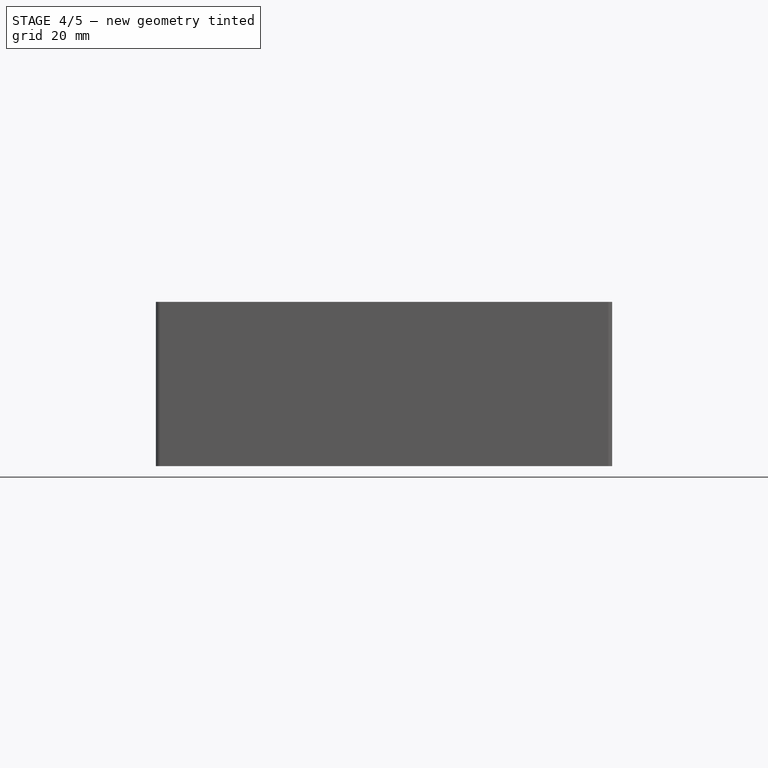
[diagram: stage 4 of 5 — front view after this stage's code; geometry added in this stage tinted green]
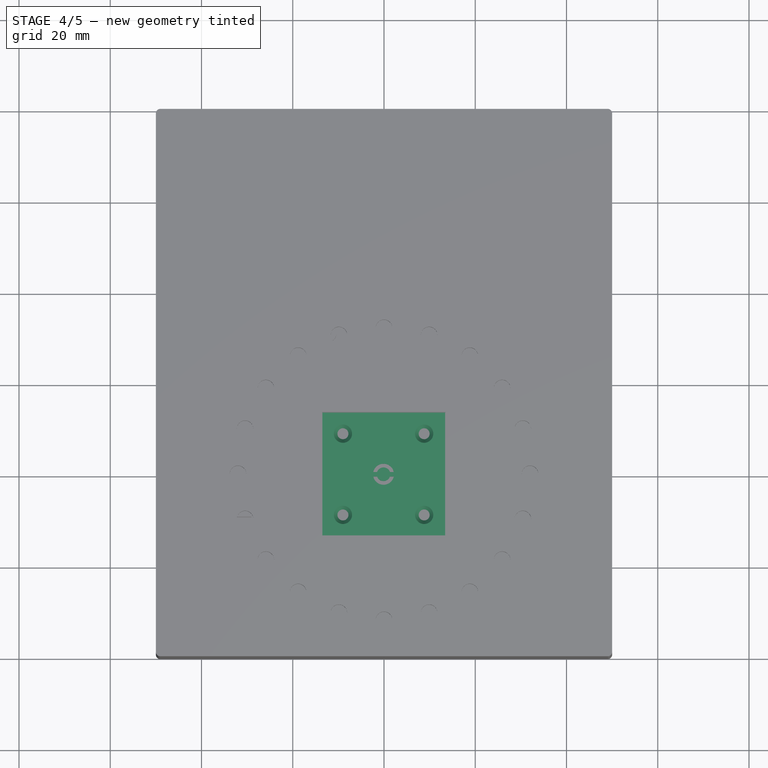
[diagram: stage 4 of 5 — top view after this stage's code; geometry added in this stage tinted green]
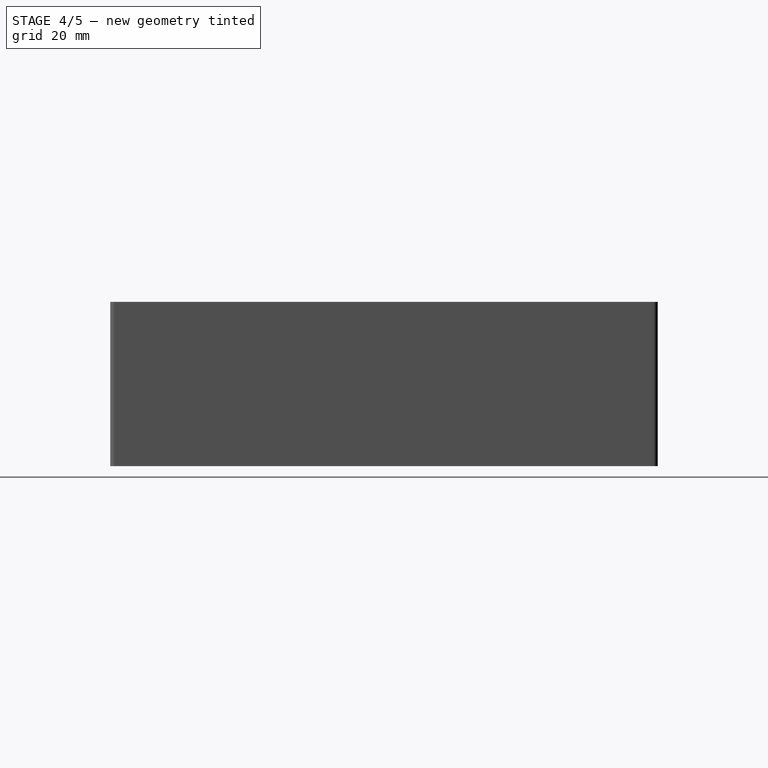
[diagram: stage 4 of 5 — right view after this stage's code; geometry added in this stage tinted green]
FEATURE [Part::MultiFuse] Fusion005004004  label="top wall fusion"
  Shapes = -> [Cut003002,Fusion005005,Array004,Array005]
FEATURE [Part::Cylinder] Cylinder014  label="stand cube hole002"
  Angle = 360
  AttacherType = Attacher::AttachEngine3D
  Height = 6.6
  Radius = 1.8
  expr: Height = <<stand cube001>>.Height
FEATURE [Part::FeaturePython] Array011  label="stand cube array002"  # Draft array (typed FeaturePython)
  Angle = 360
  ArrayType = 0
  Axis = (0,0,1)
  Base = -> Cylinder014
  Center = (0,0,0)
  Count = 4
  ExpandArray = false
  Fuse = false
  IntervalAxis = (0,0,0)
  IntervalX = (84,0,0)
  IntervalY = (0,104,0)
  IntervalZ = (0,0,100)
  NumberCircles = 3
  NumberPolar = 5
  NumberX = 2
  NumberY = 2
  NumberZ = 1
  Placement = pos=(-42,-32,-7) rot=(0,0,1;0rad)
  PlacementList = 4 placements: [(0,0,0),(0,104,0),(84,0,0),(84,104,0)]
  RadialDistance = 50
  ScaleList = (4) [(1,1,1),(1,1,1),(1,1,1),(1,1,1)]
  Symmetry = 1
  TangentialDistance = 25
  expr: .IntervalX.x = <<top wall>>.Length - <<stand cube001>>.Length - 6mm
  expr: .Placement.Base.x = -.IntervalX.x / 2
  expr: .Placement.Base.y = <<top wall>>.Placement.Base.y + <<stand cube001>>.Width / 2 + 3mm
  expr: .IntervalY.y = <<top wall>>.Width - <<stand cube001>>.Width - 6mm
  expr: .Placement.Base.z = <<bottom wall>>.Placement.Base.z
FEATURE [Sketcher::SketchObject] Sketch002
  FullyConstrained = false
  sketch-geometry (10):
    g0: Circle CenterX=-1e-16 CenterY=9.5 CenterZ=0 NormalX=0 NormalY=0 NormalZ=1 AngleXU=0 Radius=1.2
    g1: Circle CenterX=-1e-16 CenterY=-9.5 CenterZ=0 NormalX=0 NormalY=0 NormalZ=1 AngleXU=0 Radius=1.2
    g2: LineSegment StartX=2.5 StartY=-5 StartZ=0 EndX=-2.5 EndY=-5 EndZ=0
    g3: LineSegment StartX=-2.5 StartY=-5 StartZ=0 EndX=-2.5 EndY=5 EndZ=0
    g4: LineSegment StartX=-2.5 StartY=5 StartZ=0 EndX=2.5 EndY=5 EndZ=0
    g5: LineSegment StartX=2.5 StartY=5 StartZ=0 EndX=2.5 EndY=-5 EndZ=0
    g6: LineSegment StartX=-3.75 StartY=11.6 StartZ=0 EndX=3.75 EndY=11.6 EndZ=0
    g7: LineSegment StartX=3.75 StartY=11.6 StartZ=0 EndX=3.75 EndY=-11.6 EndZ=0
    g8: LineSegment StartX=3.75 StartY=-11.6 StartZ=0 EndX=-3.75 EndY=-11.6 EndZ=0
    g9: LineSegment StartX=-3.75 StartY=-11.6 StartZ=0 EndX=-3.75 EndY=11.6 EndZ=0
  constraints (26):
    c: Coincident(g2,g3)
    c: Coincident(g3,g4)
    c: Coincident(g4,g5)
    c: Coincident(g5,g2)
    c: Horizontal(g4)
    c: Vertical(g3)
    c: Equal(g0,g1)
    c: DistanceX(g1,g0) = 0
    c: DistanceY(g1,g0) = 19
    c: DistanceX(g3,g0) = 2.5
    c: DistanceY(g3,g0) = 4.5
    c: DistanceY(g5,g5) = 10
    c: Symmetric(g4,g2,g-1)
    c: DistanceX(g2,g2) = 5
    c: Symmetric(g2,g2,g-2)
    c: Radius(g1) = 1.2
    c: Coincident(g6,g7)
    c: Coincident(g7,g8)
    c: Coincident(g8,g9)
    c: Coincident(g9,g6)
    c: Horizontal(g6)
    c: Vertical(g9)
    c: DistanceX(g8,g8) = 7.5
    c: Symmetric(g8,g7,g-2)
    c: Symmetric(g7,g6,g-1)
    c: DistanceY(g7,g7) = 23.2
FEATURE [Part::Box] Box023  label="Cube"
  AttacherType = Attacher::AttachEngine3D
  Height = 5
  Length = 6
  Placement = pos=(-3,-11.5,0) rot=(0,0,1;0rad)
  Width = 23
FEATURE [PartDesign::Pad] Pad001
  AllowMultiFace = false
  Direction = (1,1,1)
  Length = 5
  Length2 = 100
  Profile = -> Sketch002
  Type = 0
FEATURE [PartDesign::Body] Body002
  Group = -> [Sketch002,Pad001]
  Origin = -> Origin020
  Tip = -> Pad001
FEATURE [Part::Cut] Cut002003006  label="switch holes cut"
  Base = -> Box023
  Placement = pos=(-46,35,8) rot=(0,-1,0;1.5708rad)
  Tool = -> Body002
FEATURE [Part::Cylinder] Cylinder016  label="battery section screw hole"
  Angle = 360
  AttacherType = Attacher::AttachEngine3D
  Height = 10
  Placement = pos=(-33,79,7) rot=(1,0,0;1.5708rad)
  Radius = 0.6
  expr: .Placement.Base.z = <<battery hole stand>>.Placement.Base.z + <<battery hole stand>>.Height / 2
FEATURE [Part::FeaturePython] Array013  label="battery section screw hole array"  # Draft array (typed FeaturePython)
  Angle = 360
  ArrayType = 0
  Axis = (0,0,1)
  Base = -> Cylinder016
  Center = (0,0,0)
  Count = 2
  ExpandArray = false
  Fuse = false
  IntervalAxis = (0,0,0)
  IntervalX = (66,0,0)
  IntervalY = (0,100,0)
  IntervalZ = (0,0,100)
  NumberCircles = 3
  NumberPolar = 5
  NumberX = 2
  NumberY = 1
  NumberZ = 1
  PlacementList = 2 placements: [(-33,79,7),(33,79,7)]
  RadialDistance = 50
  ScaleList = (2) [(1,1,1),(1,1,1)]
  Symmetry = 1
  TangentialDistance = 25
FEATURE [Part::MultiFuse] Fusion005004007  label="bottom hole fusion"
  Shapes = -> [Array011,Cut002003006,Array013]
FEATURE [Part::Box] Box031  label="battery cover plate"
  AttacherType = Attacher::AttachEngine3D
  Height = 25.4
  Length = 70.5
  Placement = pos=(-35.25,78,-4.7) rot=(0,0,1;0rad)
  Width = 2
  expr: Height = <<top wall>>.Placement.Base.z - .Placement.Base.z - 0.3mm
  expr: .Placement.Base.y = <<top wall>>.Placement.Base.y + <<top wall>>.Width - Width
  expr: .Placement.Base.z = -4.7mm
FEATURE [Part::Cylinder] Cylinder017  label="battery cover screw hole"
  Angle = 360
  AttacherType = Attacher::AttachEngine3D
  Height = 10
  Placement = pos=(-33,86,7) rot=(1,0,0;1.5708rad)
  Radius = 1.4
  expr: .Placement.Base.z = <<battery hole stand>>.Placement.Base.z + <<battery hole stand>>.Height / 2
FEATURE [Part::FeaturePython] Array014  label="battery cover screw hole array"  # Draft array (typed FeaturePython)
  Angle = 360
  ArrayType = 0
  Axis = (0,0,1)
  Base = -> Cylinder017
  Center = (0,0,0)
  Count = 2
  ExpandArray = false
  Fuse = false
  IntervalAxis = (0,0,0)
  IntervalX = (66,0,0)
  IntervalY = (0,100,0)
  IntervalZ = (0,0,100)
  NumberCircles = 3
  NumberPolar = 5
  NumberX = 2
  NumberY = 1
  NumberZ = 1
  PlacementList = 2 placements: [(-33,86,7),(33,86,7)]
  RadialDistance = 50
  ScaleList = (2) [(1,1,1),(1,1,1)]
  Symmetry = 1
  TangentialDistance = 25
FEATURE [Part::Cut] Cut002003008  label="battery cover plate cut"
  Base = -> Box031
  Tool = -> Array014
FEATURE [Sketcher::SketchObject] Sketch003
  FullyConstrained = false
  MapMode = 5
  Placement = pos=(0,0,0) rot=(0.57735,0.57735,0.57735;2.0944rad)
  Support = -> [YZ_Plane022]
  sketch-geometry (16):
    g0: LineSegment StartX=78.7623 StartY=19.8346 StartZ=0 EndX=78.7623 EndY=11.3566 EndZ=0
    g1-g7: Circle x7 (B-spline internal-alignment scaffolding for g8; pole/knot coordinates omitted)
    g8: BSplineCurve PolesCount=7 KnotsCount=5 Degree=3 IsPeriodic=0
    g9-g13: GeomPoint x5 (B-spline internal-alignment scaffolding for g8; pole/knot coordinates omitted)
    g14: LineSegment StartX=78.7623 StartY=19.8346 StartZ=0 EndX=51.6082 EndY=19.8346 EndZ=0
    g15: ArcOfCircle CenterX=51.5868 CenterY=16.2081 CenterZ=0 NormalX=0 NormalY=0 NormalZ=1 AngleXU=0 Radius=3.62658 StartAngle=1.56489 EndAngle=4.90421
  constraints (10):
    c: Vertical(g0)
    c: Coincident(g8,g0)
    c: Weight(g1) = 1
    c: Equal(g1, g2-g7) x6
    c: InternalAlignment(g1-g7 -> g8) x7
    c: InternalAlignment(g9-g13 -> g8) x5
    c: Coincident(g14,g0)
    c: Horizontal(g14)
    c: Coincident(g15,g8)
    c: Coincident(g15,g14)
FEATURE [PartDesign::Pad] Pad002
  Direction = (1,1,1)
  Length = 40
  Length2 = 100
  Midplane = true
  Placement = pos=(0,0,0) rot=(0.57735,0.57735,0.57735;2.0944rad)
  Profile = -> Sketch003
  Type = 0
FEATURE [Part::Box] Box038  label="magnit place"
  AttacherType = Attacher::AttachEngine3D
  Height = 10
  Length = 41
  Placement = pos=(-20.5,27,-11) rot=(0,0,1;0rad)
  Width = 22
  expr: .Placement.Base.x = -Length / 2
  expr: .Placement.Base.z = <<magnit wall>>.Placement.Base.z + <<magnit wall>>.Height
FEATURE [Part::Box] Box039  label="magnit place001"
  AttacherType = Attacher::AttachEngine3D
  Height = 10
  Length = 41
  Placement = pos=(-20.5,-9,-11) rot=(0,0,1;0rad)
  Width = 22
  expr: .Placement.Base.x = -Length / 2
  expr: .Placement.Base.z = <<magnit wall>>.Placement.Base.z + <<magnit wall>>.Height
FEATURE [Part::Box] Box041  label="magnit place002"
  AttacherType = Attacher::AttachEngine3D
  Height = 10
  Length = 41
  Placement = pos=(-20.5,-9,-11) rot=(0,0,1;0rad)
  Width = 22
  expr: .Placement.Base.z = <<magnit wall>>.Placement.Base.z + <<magnit wall>>.Height
  expr: .Placement.Base.x = -Length / 2
FEATURE [Part::Box] Box042  label="magnit place003"
  AttacherType = Attacher::AttachEngine3D
  Height = 10
  Length = 41
  Placement = pos=(-20.5,27,-11) rot=(0,0,1;0rad)
  Width = 22
  expr: .Placement.Base.z = <<magnit wall>>.Placement.Base.z + <<magnit wall>>.Height
  expr: .Placement.Base.x = -Length / 2
FEATURE [Part::Cut] Cut002003005  label="bottom cut"
  Base = -> Fillet007
  Tool = -> Fusion005004007
FEATURE [Part::MultiFuse] Fusion005004010  label="magnit extract fusion"
  Shapes = -> [Box038,Box039,Array016]
FEATURE [Part::Cut] Cut002003009  label="magnit wall cut"
  Base = -> Fillet009
  Tool = -> Fusion005004010
FEATURE [PartDesign::Body] Body004  label="magnet stand cube hole array clone"
  Group = -> [Clone001]
  Origin = -> Origin027
  Tip = -> Clone001
FEATURE [Part::MultiFuse] Fusion005004011  label="magnit extract fusion001"
  Shapes = -> [Box042,Box041,Body004]
FEATURE [Part::Cut] Cut002003010  label="magnit alternative wall cut"
  Base = -> Fillet008
  Tool = -> Fusion005004011
FEATURE [App::Part] Part006  label="magnit alternative wall part"
  Group = -> [Cut002003010]
  Origin = -> Origin025
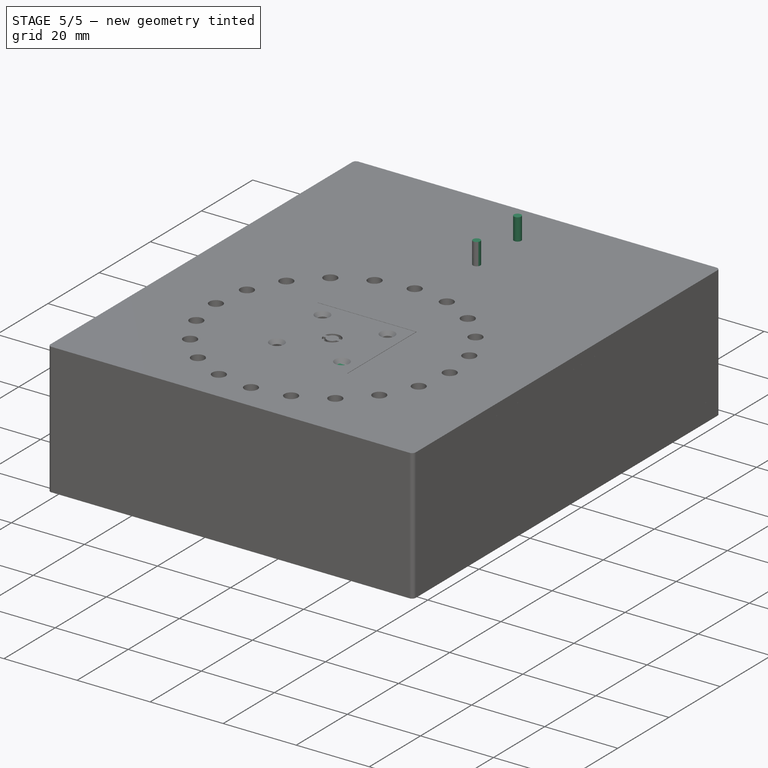
[diagram: stage 5 of 5 — iso view after this stage's code; geometry added in this stage tinted green]
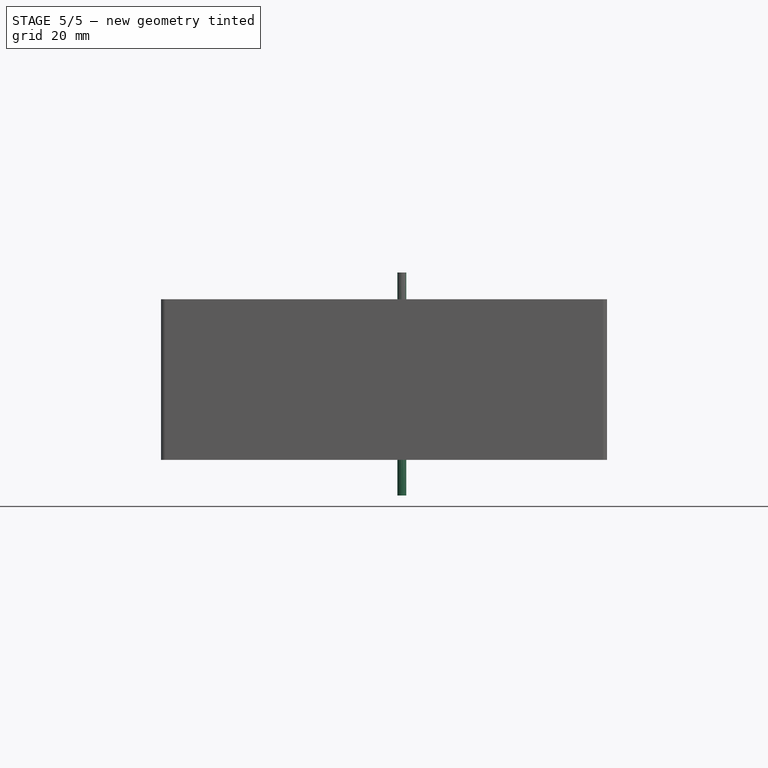
[diagram: stage 5 of 5 — front view after this stage's code; geometry added in this stage tinted green]
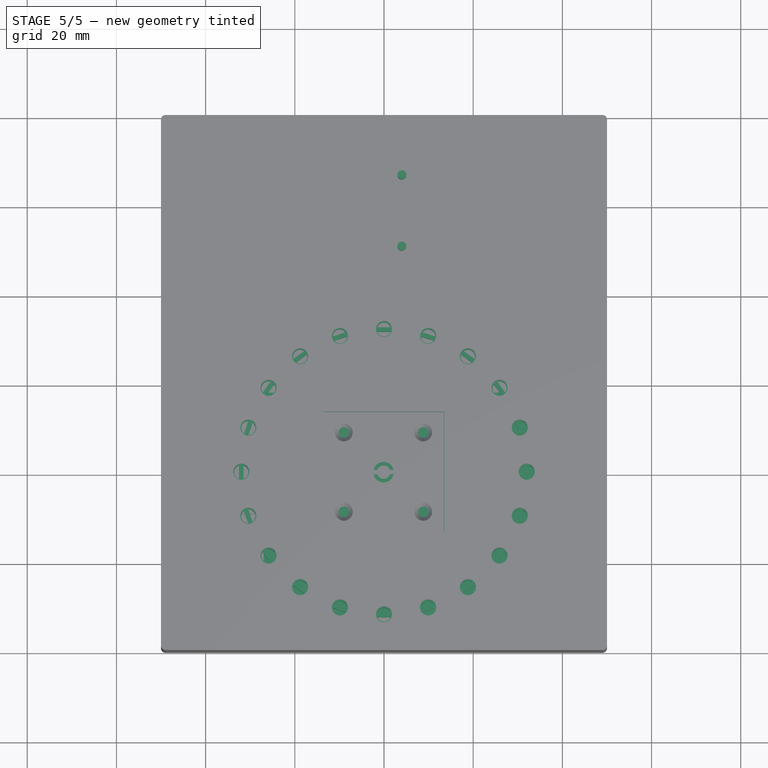
[diagram: stage 5 of 5 — top view after this stage's code; geometry added in this stage tinted green]
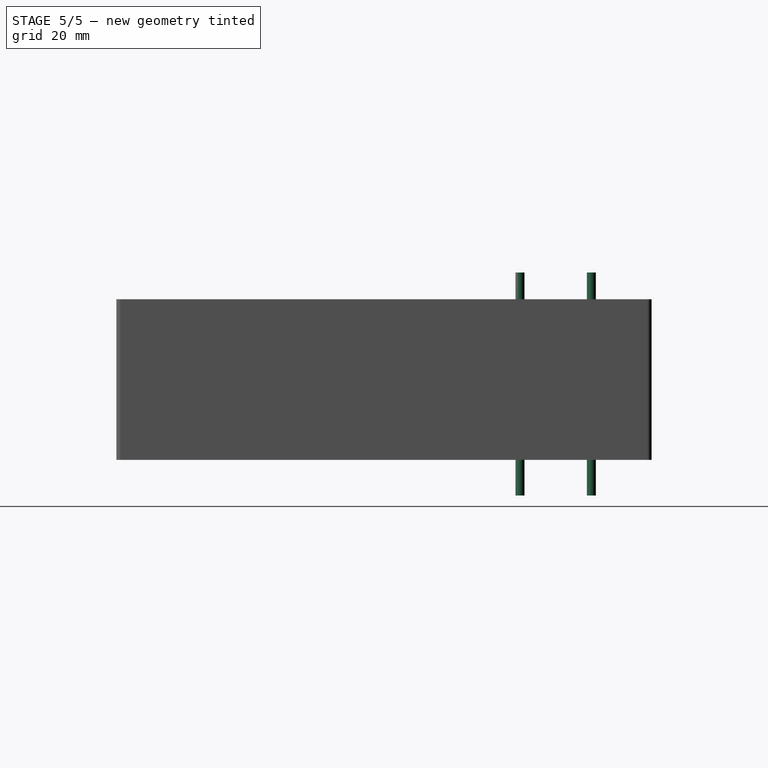
[diagram: stage 5 of 5 — right view after this stage's code; geometry added in this stage tinted green]
FEATURE [PartDesign::Body] Body
  Group = -> [Pad,Sketch]
  Origin = -> Origin001
  Tip = -> Pad
FEATURE [Part::Cylinder] Cylinder  label="outer circle"
  Angle = 360
  AttacherType = Attacher::AttachEngine3D
  Height = 7
  Radius = 36
  expr: Radius = <<led place cut>>.Placement.Base.x + 4mm
FEATURE [Part::Cylinder] Cylinder001  label="inner circle"
  Angle = 360
  AttacherType = Attacher::AttachEngine3D
  Height = 10
  Radius = 28
  expr: Radius = <<outer circle>>.Radius - 8mm
FEATURE [Part::FeaturePython] Array  label="led holder array"  # Draft array (typed FeaturePython)
  Angle = 360
  ArrayType = 1
  Axis = (0,0,1)
  Base = -> Cut001
  Center = (0,0,0)
  Count = 20
  ExpandArray = false
  Fuse = false
  IntervalAxis = (0,0,0)
  IntervalX = (50,0,0)
  IntervalY = (0,50,0)
  IntervalZ = (0,0,50)
  NumberCircles = 3
  NumberPolar = 20
  NumberX = 2
  NumberY = 2
  NumberZ = 1
  PlacementList = 20 placements: [(32,0,0),(30.4338,9.88854,0),(25.8885,18.8091,0),(18.8091,25.8885,0),(9.88854,30.4338,0),(7.10543e-15,32,0),(-9.88854,30.4338,0),(-18.8091,25.8885,0),(-25.8885,18.8091,0),(-30.4338,9.88854,0),(-32,3.91887e-15,0),(-30.4338,-9.88854,0),(-25.8885,-18.8091,0),(-18.8091,-25.8885,0),(-9.88854,-30.4338,0),(-7.10543e-15,-32,0),(9.88854,-30.4338,0),(18.8091,-25.8885,0),(25.8885,-18.8091,0),+1 more]
  RadialDistance = 50
  ScaleList = (20) [(1,1,1),(1,1,1),(1,1,1),(1,1,1),(1,1,1),(1,1,1),(1,1,1),(1,1,1),(1,1,1),(1,1,1),(1,1,1),(1,1,1),(1,1,1),(1,1,1),(1,1,1),(1,1,1),(1,1,1),(1,1,1),(1,1,1),(1,1,1)]
  Symmetry = 1
  TangentialDistance = 25
FEATURE [App::Part] Part  label="led holder part"
  Group = -> [Body,Array]
  Origin = -> Origin
FEATURE [Part::Feature] Fusion005002001  label="2 buttons mockup001"
  Placement = pos=(-18,11.5,-1e-15) rot=(1,0,0;3.14159rad)
  shape: bbox 44.8 x 50 x 10 mm, 88 faces (baked)
FEATURE [Part::Box] Box  label="battery mockup cube"
  AttacherType = Attacher::AttachEngine3D
  Height = 16
  Length = 58
  Width = 32
FEATURE [Part::Cylinder] Cylinder003  label="bolt hole"
  Angle = 360
  AttacherType = Attacher::AttachEngine3D
  Height = 50
  Radius = 1.8
FEATURE [Part::FeaturePython] Array001  label="bolt hole array"  # Draft array (typed FeaturePython)
  Angle = 360
  ArrayType = 0
  Axis = (0,0,1)
  Base = -> Cylinder003
  Center = (0,0,0)
  Count = 2
  ExpandArray = false
  Fuse = false
  IntervalAxis = (0,0,0)
  IntervalX = (100,0,0)
  IntervalY = (0,16,0)
  IntervalZ = (0,0,100)
  NumberCircles = 3
  NumberPolar = 5
  NumberX = 1
  NumberY = 2
  NumberZ = 1
  Placement = pos=(29,8,0) rot=(0,0,1;0rad)
  PlacementList = 2 placements: [(0,0,0),(0,16,0)]
  RadialDistance = 50
  ScaleList = (2) [(1,1,1),(1,1,1)]
  Symmetry = 1
  TangentialDistance = 25
  expr: .Placement.Base.x = <<battery mockup cube>>.Length / 2
  expr: .Placement.Base.y = (<<battery mockup cube>>.Width - .IntervalY.y) / 2
FEATURE [Part::Feature] Fusion005004001  label="1 button mockup001"
  Placement = pos=(-12,-12,13.5) rot=(0,0,1;0rad)
  shape: bbox 33 x 50 x 10.5 mm, 88 faces (baked)
FEATURE [Part::Cut] Cut002  label="battery mockup cut"
  Base = -> Box
  Placement = pos=(-29,45.5,-5) rot=(0,0,1;0rad)
  Tool = -> Array001
FEATURE [Part::Feature] Cut003001  label="attach plane x dir001"
  Placement = pos=(-45,-6,0) rot=(0,0,1;0rad)
  shape: bbox 90 x 11.8 x 2 mm, 18 faces (baked)
FEATURE [Part::FeaturePython] Tube  label="middle tube"  # WARN: FeaturePython — macro-defined, semantics opaque (R4)
  AttacherType = Attacher::AttachEngine3D
  Height = 4
  InnerRadius = 29
  OuterRadius = 35
  expr: OuterRadius = <<outer circle>>.Radius - 1mm
  expr: InnerRadius = <<inner circle>>.Radius + 1mm
FEATURE [Part::Cylinder] Cylinder004  label="Cylinder"
  Angle = 360
  AttacherType = Attacher::AttachEngine3D
  Height = 20
  Placement = pos=(0,36,0) rot=(1,0,0;1.5708rad)
  Radius = 1
  expr: .Placement.Base.y = <<outer circle>>.Radius
FEATURE [Part::FeaturePython] Array002  label="wire hole array"  # Draft array (typed FeaturePython)
  Angle = 360
  ArrayType = 1
  Axis = (0,0,1)
  Base = -> Cylinder004
  Center = (0,0,0)
  Count = 20
  ExpandArray = false
  Fuse = false
  IntervalAxis = (0,0,0)
  IntervalX = (50,0,0)
  IntervalY = (0,50,0)
  IntervalZ = (0,0,50)
  NumberCircles = 3
  NumberPolar = 20
  NumberX = 2
  NumberY = 2
  NumberZ = 1
  PlacementList = 20 placements: [(0,36,0),(-11.1246,34.238,0),(-21.1603,29.1246,0),(-29.1246,21.1603,0),(-34.238,11.1246,0),(-36,7.10543e-15,0),(-34.238,-11.1246,0),(-29.1246,-21.1603,0),(-21.1603,-29.1246,0),(-11.1246,-34.238,0),(-4.40873e-15,-36,0),(11.1246,-34.238,0),(21.1603,-29.1246,0),(29.1246,-21.1603,0),(34.238,-11.1246,0),(36,-7.10543e-15,0),(34.238,11.1246,0),(29.1246,21.1603,0),(21.1603,29.1246,0),(11.1246,34.238,0)]
  RadialDistance = 50
  ScaleList = (20) [(1,1,1),(1,1,1),(1,1,1),(1,1,1),(1,1,1),(1,1,1),(1,1,1),(1,1,1),(1,1,1),(1,1,1),(1,1,1),(1,1,1),(1,1,1),(1,1,1),(1,1,1),(1,1,1),(1,1,1),(1,1,1),(1,1,1),(1,1,1)]
  Symmetry = 1
  TangentialDistance = 25
FEATURE [Part::MultiFuse] Fusion
  Shapes = -> [Cylinder001,Array,Tube,Array002]
FEATURE [Part::Box] Box003  label="7x5pcb mockup"
  AttacherType = Attacher::AttachEngine3D
  Height = 1
  Length = 70
  Placement = pos=(43,18,7) rot=(0,0,1;3.14159rad)
  Width = 50
FEATURE [Part::Box] Box010  label="hole cube"
  AttacherType = Attacher::AttachEngine3D
  Height = 7
  Length = 14
  Placement = pos=(0,-10,0) rot=(0,0,1;0rad)
  Width = 20
  expr: Height = <<outer circle>>.Height
  expr: .Placement.Base.y = -Width / 2
FEATURE [Part::Fillet] Fillet002  label="hole cube fillet"
  Base = -> Box010
  Edges = 2 edges r=2.5: [Edge5,Edge7]
FEATURE [Part::Cylinder] Cylinder009  label="hole cube hole"
  Angle = 360
  AttacherType = Attacher::AttachEngine3D
  Height = 7
  Radius = 1.8
  expr: Height = <<hole cube>>.Height
FEATURE [Part::Cylinder] Cylinder010  label="hole cube underhole"
  Angle = 360
  AttacherType = Attacher::AttachEngine3D
  Height = 7
  Placement = pos=(0,0,4) rot=(0,0,1;0rad)
  Radius = 5
  expr: Height = <<hole cube>>.Height
  expr: Radius = <<stand>>.Radius + 1mm
FEATURE [Part::MultiFuse] Fusion005004006  label="hole cube hole fusion"
  Placement = pos=(8,0,0) rot=(0,0,1;0rad)
  Shapes = -> [Cylinder009,Cylinder010]
FEATURE [Part::Cut] Cut002003004  label="hole cube cut"
  Base = -> Fillet002
  Placement = pos=(32,0,0) rot=(0,0,1;0rad)
  Tool = -> Fusion005004006
  expr: .Placement.Base.x = (<<outer circle>>.Radius + <<inner circle>>.Radius) / 2
FEATURE [Part::Mirroring] Part__Mirroring  label="hole cube cut (Mirror #1)"
  Base = (0,0,0)
  Normal = (1,0,0)
  Source = -> Cut002003004
FEATURE [Part::MultiFuse] Fusion005004002
  Shapes = -> [Cylinder,Cut002003004,Part__Mirroring]
FEATURE [Part::Cut] Cut  label="led circle cut"
  Base = -> Fusion005004002
  Placement = pos=(0,0,11) rot=(0,0,1;0rad)
  Tool = -> Fusion
FEATURE [App::Part] Part002  label="pcb with 4 holes double layer no attachment"
  Group = -> [Fusion005,Box011,Box013,Cut002004,Array007,Fusion003,Cut002005]
  Origin = -> Origin004
  Placement = pos=(35,-36,-7) rot=(0,0,1;1.5708rad)
FEATURE [Part::Cylinder] Cylinder012  label="bolt hole001"
  Angle = 360
  AttacherType = Attacher::AttachEngine3D
  Height = 50
  Radius = 1
FEATURE [Part::FeaturePython] Array009  label="battery bolt hole array"  # Draft array (typed FeaturePython)
  Angle = 360
  ArrayType = 0
  Axis = (0,0,1)
  Base = -> Cylinder012
  Center = (0,0,0)
  Count = 2
  ExpandArray = false
  Fuse = false
  IntervalAxis = (0,0,0)
  IntervalX = (100,0,0)
  IntervalY = (0,16,0)
  IntervalZ = (0,0,100)
  NumberCircles = 3
  NumberPolar = 5
  NumberX = 1
  NumberY = 2
  NumberZ = 1
  Placement = pos=(4,50.5,-20) rot=(0,0,1;0rad)
  PlacementList = 2 placements: [(0,0,0),(0,16,0)]
  RadialDistance = 50
  ScaleList = (2) [(1,1,1),(1,1,1)]
  Symmetry = 1
  TangentialDistance = 25
FEATURE [PartDesign::Body] Body003
  Group = -> [Sketch003,Pad002]
  Origin = -> Origin022
  Tip = -> Pad002
FEATURE [Part::MultiFuse] Fusion005004008  label="battery cover plate fusion"
  Shapes = -> [Cut002003008,Body003]
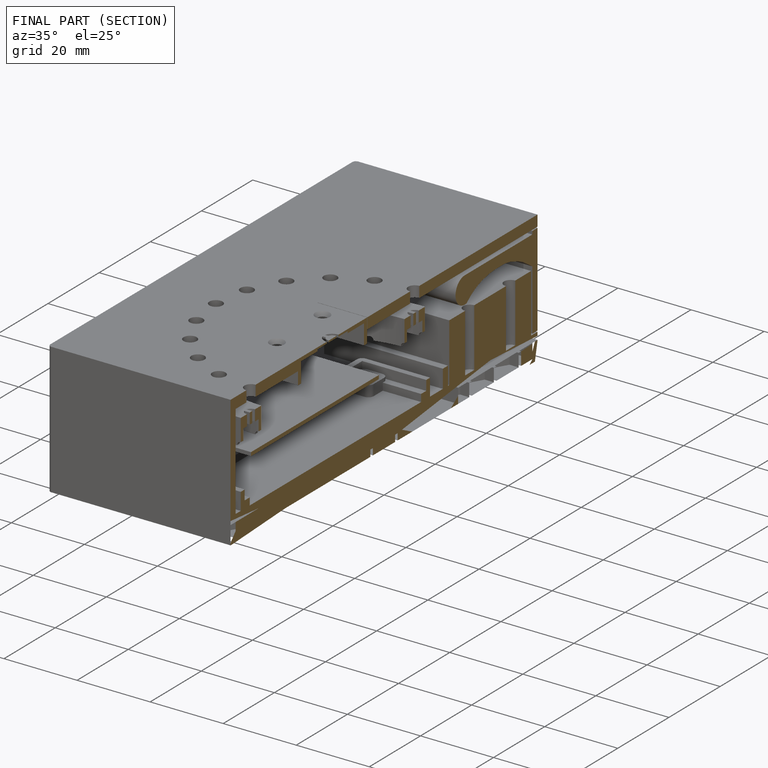
[diagram: finished part — half-section view (interior)]
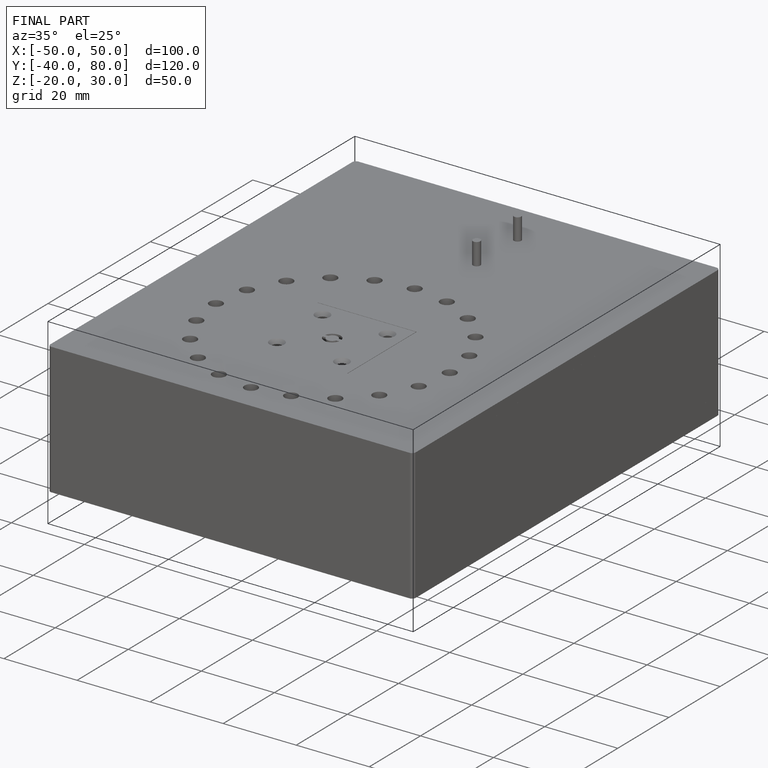
[diagram: finished part — iso view with bounding-box wireframe]
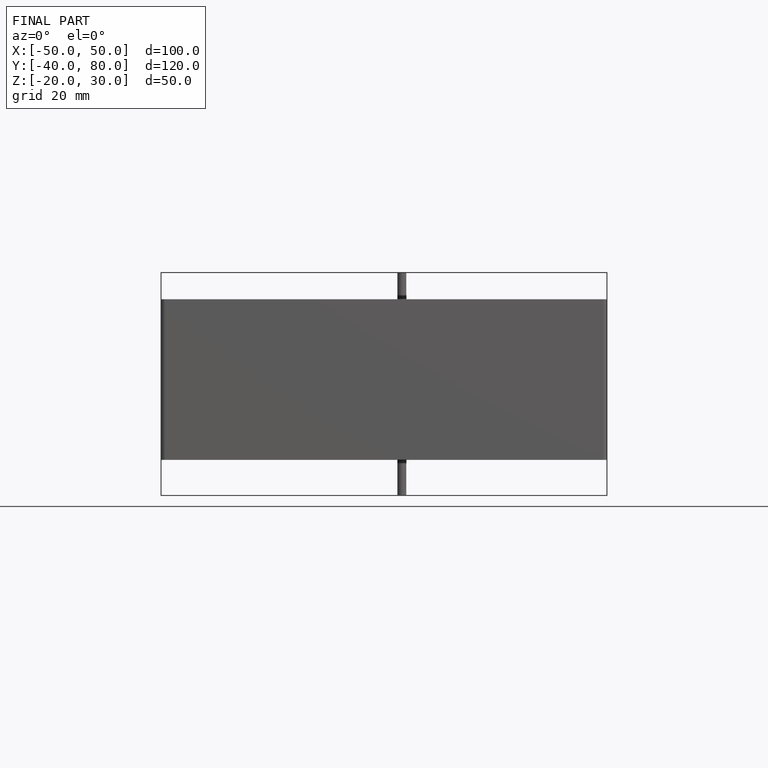
[diagram: finished part — front view with bounding-box wireframe]
